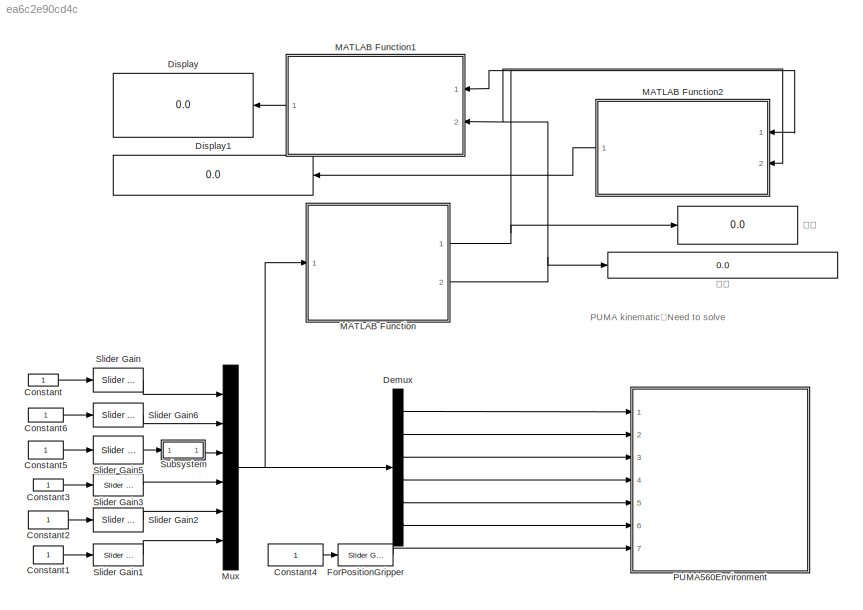
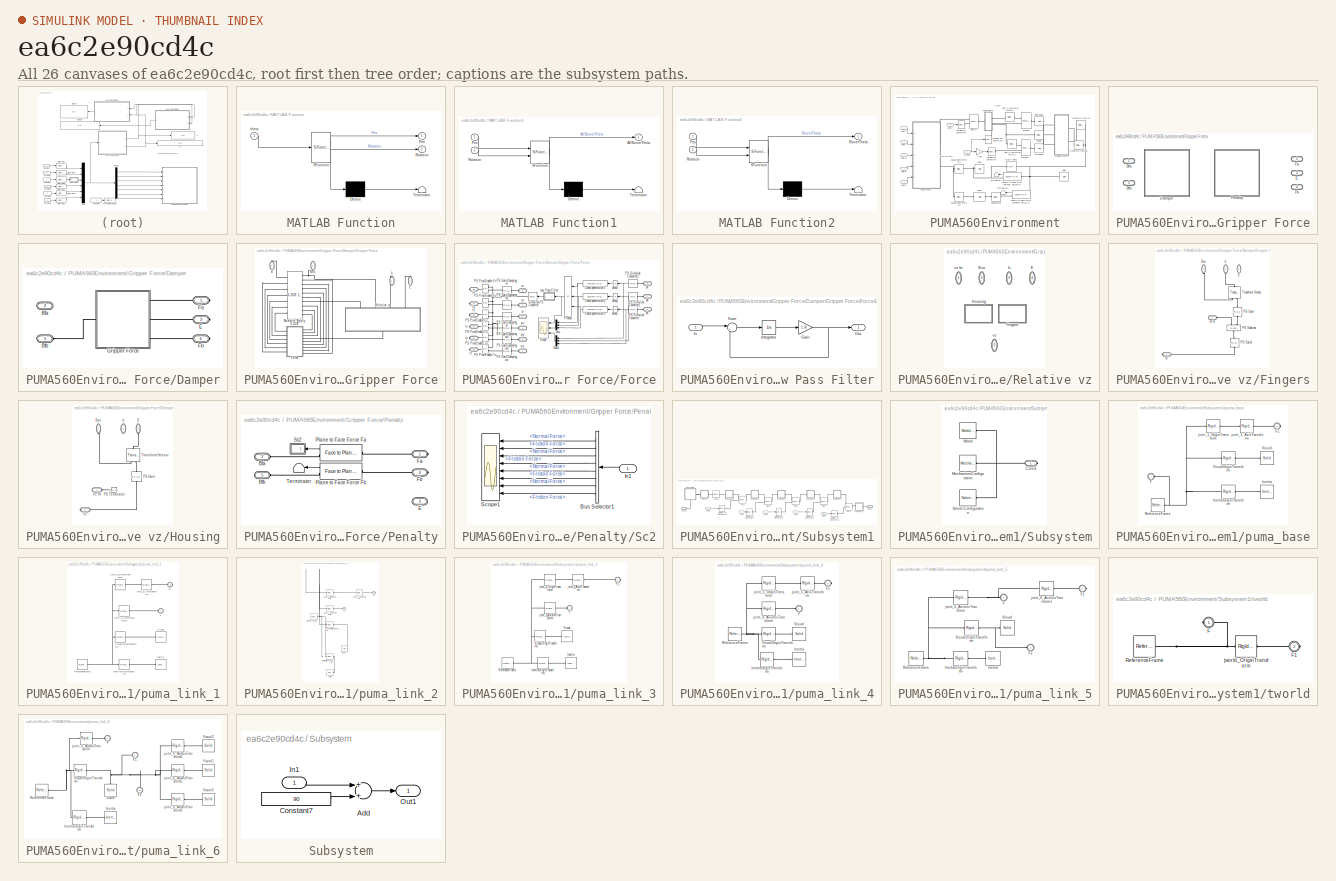
[diagram: thumbnail index - all 26 canvases of the model, root first then tree order]
MODEL slx_ea6c2e90cd4c
KIND model
CONFIG AbsTol = auto
CONFIG EnableMultiTasking = off
CONFIG FixedStep = 0.001
CONFIG InitFcn = %% Floor\nYBT_Par.Floor.r = 54.5e-2; % m\nYBT_Par.Floor.d = 1e-2;    % m\n\n%% Cube and Fixed Payload \n% Cube that moves on belt\nYBT_Par.Cube.d = 3e-2;                         % m\nYBT_Par.Cube.Con.rSph = YBT_Par.Cube.d*5e-2;   % m\nYBT_Par.Cube.init_z = 1e-1; % m Lower surface above floor\nYBT_Par.Cube.init_y = 40e-2+20e-2;             % m CG to World\nYBT_Par.Cube.mark.base = YBT_Par.Cube.d*0.4;   % m\nY...<+321ch>
CONFIG MaxStep = 0.01
CONFIG MinStep = auto
CONFIG PreLoadFcn = %puma560=importrobot('puma560.urdf');\n\n\n
CONFIG RelTol = 1e-3
CONFIG SampleTimeConstraint = Unconstrained
CONFIG Solver = ode3
CONFIG SolverName = ode3
CONFIG StartTime = 0.0
CONFIG StopTime = inf
WORKSPACE source: MAT-file member
WORKSPACE color: struct (value not decoded)
BLOCK [Constant] Constant
BLOCK [Constant] Constant1
BLOCK [Constant] Constant2
BLOCK [Constant] Constant3
BLOCK [Constant] Constant4
BLOCK [Constant] Constant5
BLOCK [Constant] Constant6
BLOCK [Demux] Demux
  DisplayOption = bar
  Outputs = 6
  Ports = [1, 6]
BLOCK [Display] Display
  Commented = on
  Decimation = 1
  Ports = [1]
BLOCK [Display] Display1
  Commented = on
  Decimation = 1
  Ports = [1]
BLOCK [Reference] ForPositionGripper  REF=simulink/Math
Operations/Slider
Gain
  Ports = [1, 1]
  SourceBlock = simulink/Math\nOperations/Slider\nGain
  SourceProductBaseCode = SL
  SourceProductName = Simulink
  SourceType = Slider Gain
BLOCK [SubSystem] MATLAB Function
  Commented = on
  ErrorFcn = Stateflow.Translate.translate
  PermitHierarchicalResolution = ExplicitOnly
  Ports = [1, 2]
  RequestExecContextInheritance = off
  SFBlockType = MATLAB Function
  TreatAsAtomicUnit = on
BLOCK [Demux] MATLAB Function/ Demux 
  Outputs = 1
  Ports = [1, 1]
BLOCK [S-Function] MATLAB Function/ SFunction 
  EnableBusSupport = on
  FunctionName = sf_sfun
  PortCounts = [1 3]
  Ports = [1, 3]
  SFcnIsStateOwnerBlock = off
  SFunctionDeploymentMode = off
  Tag = Stateflow S-Function TestPuma560 2
BLOCK [Terminator] MATLAB Function/ Terminator 
BLOCK [Outport] MATLAB Function/Pos
  IconDisplay = Port number
BLOCK [Outport] MATLAB Function/Rotation
  IconDisplay = Port number
  Port = 2
BLOCK [Inport] MATLAB Function/theta
  IconDisplay = Port number
BLOCK [SubSystem] MATLAB Function1
  Commented = on
  ErrorFcn = Stateflow.Translate.translate
  PermitHierarchicalResolution = ExplicitOnly
  Ports = [2, 1]
  RequestExecContextInheritance = off
  SFBlockType = MATLAB Function
  TreatAsAtomicUnit = on
BLOCK [Demux] MATLAB Function1/ Demux 
  Outputs = 1
  Ports = [1, 1]
BLOCK [S-Function] MATLAB Function1/ SFunction 
  EnableBusSupport = on
  FunctionName = sf_sfun
  PortCounts = [2 2]
  Ports = [2, 2]
  SFcnIsStateOwnerBlock = off
  SFunctionDeploymentMode = off
  Tag = Stateflow S-Function TestPuma560 1
BLOCK [Terminator] MATLAB Function1/ Terminator 
BLOCK [Outport] MATLAB Function1/AllSloverTheta
  IconDisplay = Port number
BLOCK [Inport] MATLAB Function1/Pos
  IconDisplay = Port number
BLOCK [Inport] MATLAB Function1/Rotation
  IconDisplay = Port number
  Port = 2
BLOCK [SubSystem] MATLAB Function2
  Commented = on
  ErrorFcn = Stateflow.Translate.translate
  PermitHierarchicalResolution = ExplicitOnly
  Ports = [2, 1]
  RequestExecContextInheritance = off
  SFBlockType = MATLAB Function
  TreatAsAtomicUnit = on
BLOCK [Demux] MATLAB Function2/ Demux 
  Outputs = 1
  Ports = [1, 1]
BLOCK [S-Function] MATLAB Function2/ SFunction 
  EnableBusSupport = on
  FunctionName = sf_sfun
  PortCounts = [2 2]
  Ports = [2, 2]
  SFcnIsStateOwnerBlock = off
  SFunctionDeploymentMode = off
  Tag = Stateflow S-Function TestPuma560 3
BLOCK [Terminator] MATLAB Function2/ Terminator 
BLOCK [Inport] MATLAB Function2/Pos
  IconDisplay = Port number
BLOCK [Inport] MATLAB Function2/Rotation
  IconDisplay = Port number
  Port = 2
BLOCK [Outport] MATLAB Function2/SloverTheta
  IconDisplay = Port number
BLOCK [Mux] Mux
  DisplayOption = bar
  Inputs = 6
  Ports = [6, 1]
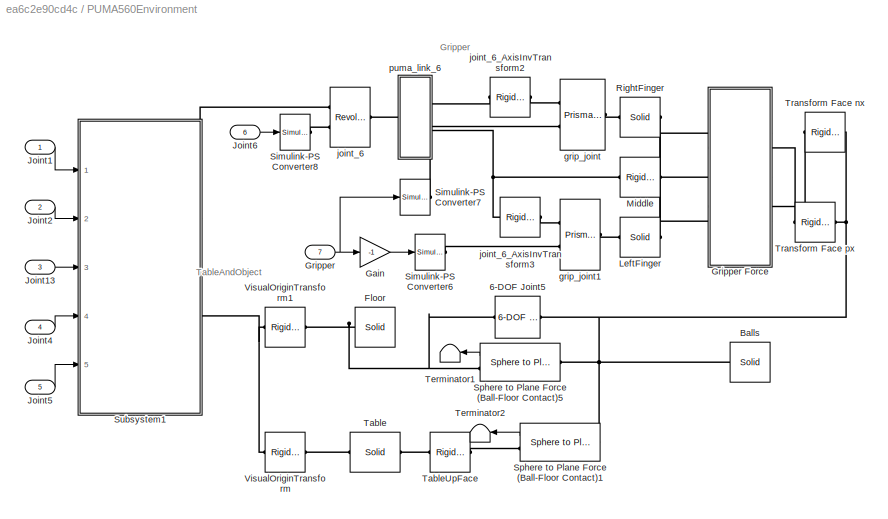
BLOCK [SubSystem] PUMA560Environment
  Ports = [7]
  RequestExecContextInheritance = off
BLOCK [Reference] PUMA560Environment/6-DOF Joint5  REF=sm_lib/Joints/6-DOF Joint
  Ports = [0, 0, 0, 0, 0, 1, 1]
  SourceBlock = sm_lib/Joints/6-DOF Joint
  SourceProductBaseCode = MS
  SourceProductName = Simscape Multibody
  SourceType = 6-DOF Joint
BLOCK [Reference] PUMA560Environment/Balls  REF=sm_lib/Body Elements/Solid
  Ports = [0, 0, 0, 0, 0, 0, 1]
  SourceBlock = sm_lib/Body Elements/Solid
  SourceProductBaseCode = MS
  SourceProductName = Simscape Multibody
  SourceType = Solid
BLOCK [Reference] PUMA560Environment/Floor  REF=sm_lib/Body Elements/Solid
  Ports = [0, 0, 0, 0, 0, 0, 1]
  SourceBlock = sm_lib/Body Elements/Solid
  SourceProductBaseCode = MS
  SourceProductName = Simscape Multibody
  SourceType = Solid
BLOCK [Gain] PUMA560Environment/Gain
  Gain = -1
  OutDataTypeStr = Inherit: Inherit via internal rule
  ParamDataTypeStr = Inherit: Inherit via internal rule
  SaturateOnIntegerOverflow = off
BLOCK [Inport] PUMA560Environment/Gripper 
  IconDisplay = Port number
  Port = 7
BLOCK [SubSystem] PUMA560Environment/Gripper Force
  AttributesFormatString = %<ActiveVariant>
  OverrideUsingVariant = Damper
  Ports = [0, 0, 0, 0, 0, 2, 3]
  RequestExecContextInheritance = off
  Variant = on
BLOCK [PMIOPort] PUMA560Environment/Gripper Force/Bfa
  Port = 2
  Side = Left
BLOCK [PMIOPort] PUMA560Environment/Gripper Force/Bfb
  Port = 5
  Side = Left
BLOCK [SubSystem] PUMA560Environment/Gripper Force/Damper
  Ports = [0, 0, 0, 0, 0, 2, 3]
  RequestExecContextInheritance = off
  VariantControl = Damper
BLOCK [PMIOPort] PUMA560Environment/Gripper Force/Damper/Bfa
  Port = 2
  Side = Left
BLOCK [PMIOPort] PUMA560Environment/Gripper Force/Damper/Bfb
  Port = 5
  Side = Left
BLOCK [PMIOPort] PUMA560Environment/Gripper Force/Damper/E
  Port = 3
  Side = Right
BLOCK [PMIOPort] PUMA560Environment/Gripper Force/Damper/Fa
  Side = Right
BLOCK [PMIOPort] PUMA560Environment/Gripper Force/Damper/Fb
  Port = 4
  Side = Right
BLOCK [SubSystem] PUMA560Environment/Gripper Force/Damper/Gripper Force
  Ports = [0, 0, 0, 0, 0, 1, 3]
  RequestExecContextInheritance = off
  Tag = PublishSubsystem
BLOCK [PMIOPort] PUMA560Environment/Gripper Force/Damper/Gripper Force/Box
  Port = 4
  Side = Left
BLOCK [PMIOPort] PUMA560Environment/Gripper Force/Damper/Gripper Force/E
  Port = 2
  Side = Right
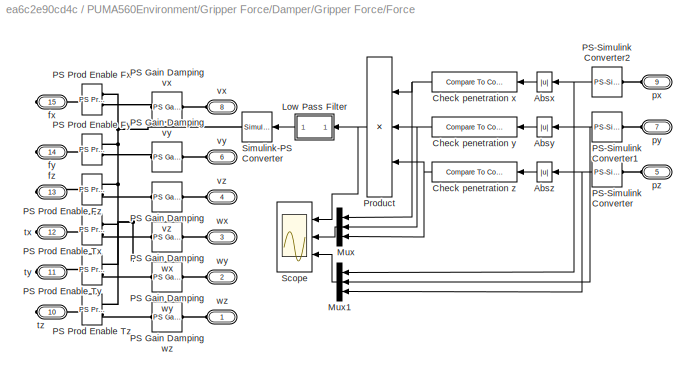
BLOCK [SubSystem] PUMA560Environment/Gripper Force/Damper/Gripper Force/Force
  Ports = [0, 0, 0, 0, 0, 9, 6]
  RequestExecContextInheritance = off
BLOCK [Abs] PUMA560Environment/Gripper Force/Damper/Gripper Force/Force/Absx
  SaturateOnIntegerOverflow = off
  ZeroCross = off
BLOCK [Abs] PUMA560Environment/Gripper Force/Damper/Gripper Force/Force/Absy
  SaturateOnIntegerOverflow = off
  ZeroCross = off
BLOCK [Abs] PUMA560Environment/Gripper Force/Damper/Gripper Force/Force/Absz
  SaturateOnIntegerOverflow = off
  ZeroCross = off
BLOCK [Reference] PUMA560Environment/Gripper Force/Damper/Gripper Force/Force/Check penetration x  REF=simulink/Logic and Bit
Operations/Compare
To Constant
  Ports = [1, 1]
  SourceBlock = simulink/Logic and Bit\nOperations/Compare\nTo Constant
  SourceProductBaseCode = SL
  SourceProductName = Simulink
  SourceType = Compare To Constant
BLOCK [Reference] PUMA560Environment/Gripper Force/Damper/Gripper Force/Force/Check penetration y  REF=simulink/Logic and Bit
Operations/Compare
To Constant
  Ports = [1, 1]
  SourceBlock = simulink/Logic and Bit\nOperations/Compare\nTo Constant
  SourceProductBaseCode = SL
  SourceProductName = Simulink
  SourceType = Compare To Constant
BLOCK [Reference] PUMA560Environment/Gripper Force/Damper/Gripper Force/Force/Check penetration z  REF=simulink/Logic and Bit
Operations/Compare
To Constant
  Ports = [1, 1]
  SourceBlock = simulink/Logic and Bit\nOperations/Compare\nTo Constant
  SourceProductBaseCode = SL
  SourceProductName = Simulink
  SourceType = Compare To Constant
BLOCK [SubSystem] PUMA560Environment/Gripper Force/Damper/Gripper Force/Force/Low Pass Filter
  Ports = [1, 1]
  RequestExecContextInheritance = off
BLOCK [Gain] PUMA560Environment/Gripper Force/Damper/Gripper Force/Force/Low Pass Filter/Gain
  Gain = 1./b
  OutDataTypeStr = Inherit: Inherit via internal rule
  ParamDataTypeStr = Inherit: Inherit via internal rule
  SaturateOnIntegerOverflow = off
BLOCK [Inport] PUMA560Environment/Gripper Force/Damper/Gripper Force/Force/Low Pass Filter/In
  IconDisplay = Port number
BLOCK [Integrator] PUMA560Environment/Gripper Force/Damper/Gripper Force/Force/Low Pass Filter/Integrator
  InitialCondition = x_initial.*b
  Ports = [1, 1]
BLOCK [Outport] PUMA560Environment/Gripper Force/Damper/Gripper Force/Force/Low Pass Filter/Out
  IconDisplay = Port number
BLOCK [Sum] PUMA560Environment/Gripper Force/Damper/Gripper Force/Force/Low Pass Filter/Sum
  IconShape = round
  Inputs = |+-
  Ports = [2, 1]
BLOCK [Mux] PUMA560Environment/Gripper Force/Damper/Gripper Force/Force/Mux
  DisplayOption = bar
  Inputs = 3
  Ports = [3, 1]
BLOCK [Mux] PUMA560Environment/Gripper Force/Damper/Gripper Force/Force/Mux1
  DisplayOption = bar
  Inputs = 3
  Ports = [3, 1]
BLOCK [Reference] PUMA560Environment/Gripper Force/Damper/Gripper Force/Force/PS Gain Damping vx  REF=fl_lib/Physical Signals/Functions/PS Gain
  Ports = [0, 0, 0, 0, 0, 1, 1]
  SourceBlock = fl_lib/Physical Signals/Functions/PS Gain
  SourceProductBaseCode = SS
  SourceProductName = Simscape
  SourceType = PS Gain
BLOCK [Reference] PUMA560Environment/Gripper Force/Damper/Gripper Force/Force/PS Gain Damping vy  REF=fl_lib/Physical Signals/Functions/PS Gain
  Ports = [0, 0, 0, 0, 0, 1, 1]
  SourceBlock = fl_lib/Physical Signals/Functions/PS Gain
  SourceProductBaseCode = SS
  SourceProductName = Simscape
  SourceType = PS Gain
BLOCK [Reference] PUMA560Environment/Gripper Force/Damper/Gripper Force/Force/PS Gain Damping vz  REF=fl_lib/Physical Signals/Functions/PS Gain
  Ports = [0, 0, 0, 0, 0, 1, 1]
  SourceBlock = fl_lib/Physical Signals/Functions/PS Gain
  SourceProductBaseCode = SS
  SourceProductName = Simscape
  SourceType = PS Gain
BLOCK [Reference] PUMA560Environment/Gripper Force/Damper/Gripper Force/Force/PS Gain Damping wx  REF=fl_lib/Physical Signals/Functions/PS Gain
  Ports = [0, 0, 0, 0, 0, 1, 1]
  SourceBlock = fl_lib/Physical Signals/Functions/PS Gain
  SourceProductBaseCode = SS
  SourceProductName = Simscape
  SourceType = PS Gain
BLOCK [Reference] PUMA560Environment/Gripper Force/Damper/Gripper Force/Force/PS Gain Damping wy  REF=fl_lib/Physical Signals/Functions/PS Gain
  Ports = [0, 0, 0, 0, 0, 1, 1]
  SourceBlock = fl_lib/Physical Signals/Functions/PS Gain
  SourceProductBaseCode = SS
  SourceProductName = Simscape
  SourceType = PS Gain
BLOCK [Reference] PUMA560Environment/Gripper Force/Damper/Gripper Force/Force/PS Gain Damping wz  REF=fl_lib/Physical Signals/Functions/PS Gain
  Ports = [0, 0, 0, 0, 0, 1, 1]
  SourceBlock = fl_lib/Physical Signals/Functions/PS Gain
  SourceProductBaseCode = SS
  SourceProductName = Simscape
  SourceType = PS Gain
BLOCK [Reference] PUMA560Environment/Gripper Force/Damper/Gripper Force/Force/PS Prod Enable Fx  REF=fl_lib/Physical Signals/Functions/PS Product
  Ports = [0, 0, 0, 0, 0, 2, 1]
  SourceBlock = fl_lib/Physical Signals/Functions/PS Product
  SourceProductBaseCode = SS
  SourceProductName = Simscape
  SourceType = PS Product
BLOCK [Reference] PUMA560Environment/Gripper Force/Damper/Gripper Force/Force/PS Prod Enable Fy  REF=fl_lib/Physical Signals/Functions/PS Product
  Ports = [0, 0, 0, 0, 0, 2, 1]
  SourceBlock = fl_lib/Physical Signals/Functions/PS Product
  SourceProductBaseCode = SS
  SourceProductName = Simscape
  SourceType = PS Product
BLOCK [Reference] PUMA560Environment/Gripper Force/Damper/Gripper Force/Force/PS Prod Enable Fz  REF=fl_lib/Physical Signals/Functions/PS Product
  Ports = [0, 0, 0, 0, 0, 2, 1]
  SourceBlock = fl_lib/Physical Signals/Functions/PS Product
  SourceProductBaseCode = SS
  SourceProductName = Simscape
  SourceType = PS Product
BLOCK [Reference] PUMA560Environment/Gripper Force/Damper/Gripper Force/Force/PS Prod Enable Tx  REF=fl_lib/Physical Signals/Functions/PS Product
  Ports = [0, 0, 0, 0, 0, 2, 1]
  SourceBlock = fl_lib/Physical Signals/Functions/PS Product
  SourceProductBaseCode = SS
  SourceProductName = Simscape
  SourceType = PS Product
BLOCK [Reference] PUMA560Environment/Gripper Force/Damper/Gripper Force/Force/PS Prod Enable Ty  REF=fl_lib/Physical Signals/Functions/PS Product
  Ports = [0, 0, 0, 0, 0, 2, 1]
  SourceBlock = fl_lib/Physical Signals/Functions/PS Product
  SourceProductBaseCode = SS
  SourceProductName = Simscape
  SourceType = PS Product
BLOCK [Reference] PUMA560Environment/Gripper Force/Damper/Gripper Force/Force/PS Prod Enable Tz  REF=fl_lib/Physical Signals/Functions/PS Product
  Ports = [0, 0, 0, 0, 0, 2, 1]
  SourceBlock = fl_lib/Physical Signals/Functions/PS Product
  SourceProductBaseCode = SS
  SourceProductName = Simscape
  SourceType = PS Product
BLOCK [Reference] PUMA560Environment/Gripper Force/Damper/Gripper Force/Force/PS-Simulink Converter  REF=nesl_utility/PS-Simulink
Converter
  Ports = [0, 1, 0, 0, 0, 1]
  SourceBlock = nesl_utility/PS-Simulink\nConverter
  SourceProductBaseCode = SS
  SourceProductName = Simscape
  SourceType = PS-Simulink\nConverter
BLOCK [Reference] PUMA560Environment/Gripper Force/Damper/Gripper Force/Force/PS-Simulink Converter1  REF=nesl_utility/PS-Simulink
Converter
  Ports = [0, 1, 0, 0, 0, 1]
  SourceBlock = nesl_utility/PS-Simulink\nConverter
  SourceProductBaseCode = SS
  SourceProductName = Simscape
  SourceType = PS-Simulink\nConverter
BLOCK [Reference] PUMA560Environment/Gripper Force/Damper/Gripper Force/Force/PS-Simulink Converter2  REF=nesl_utility/PS-Simulink
Converter
  Ports = [0, 1, 0, 0, 0, 1]
  SourceBlock = nesl_utility/PS-Simulink\nConverter
  SourceProductBaseCode = SS
  SourceProductName = Simscape
  SourceType = PS-Simulink\nConverter
BLOCK [Product] PUMA560Environment/Gripper Force/Damper/Gripper Force/Force/Product
  InputSameDT = off
  Inputs = 3
  OutDataTypeStr = double
  Ports = [3, 1]
  RndMeth = Floor
  SaturateOnIntegerOverflow = off
BLOCK [Scope] PUMA560Environment/Gripper Force/Damper/Gripper Force/Force/Scope
  Floating = off
  NumInputPorts = 3
  Ports = [3]
  ScopeSpecificationString = Simulink.scopes.TimeScopeBlockCfg('CurrentConfiguration', extmgr.ConfigurationSet(extmgr.Configuration('Core','General UI',true),extmgr.Configuration('Core','Source UI',true),extmgr.Configuration('Sources','WiredSimulink',true,'DataLoggingVariableName','ScopeData1'),extmgr.Configuration('Visuals','Time Domain',true,'SerializedDisplays',{struct('MinYLimReal','-1.00000','MaxYLimReal','1.00000','YLab...<+2860ch>
BLOCK [Reference] PUMA560Environment/Gripper Force/Damper/Gripper Force/Force/Simulink-PS Converter  REF=nesl_utility/Simulink-PS
Converter
  Ports = [1, 0, 0, 0, 0, 0, 1]
  SourceBlock = nesl_utility/Simulink-PS\nConverter
  SourceProductBaseCode = SS
  SourceProductName = Simscape
  SourceType = Simulink-PS\nConverter
BLOCK [PMIOPort] PUMA560Environment/Gripper Force/Damper/Gripper Force/Force/fx
  Port = 15
  Side = Right
BLOCK [PMIOPort] PUMA560Environment/Gripper Force/Damper/Gripper Force/Force/fy
  Port = 14
  Side = Right
BLOCK [PMIOPort] PUMA560Environment/Gripper Force/Damper/Gripper Force/Force/fz
  Port = 13
  Side = Right
BLOCK [PMIOPort] PUMA560Environment/Gripper Force/Damper/Gripper Force/Force/px
  Port = 9
  Side = Left
BLOCK [PMIOPort] PUMA560Environment/Gripper Force/Damper/Gripper Force/Force/py
  Port = 7
  Side = Left
BLOCK [PMIOPort] PUMA560Environment/Gripper Force/Damper/Gripper Force/Force/pz
  Port = 5
  Side = Left
BLOCK [PMIOPort] PUMA560Environment/Gripper Force/Damper/Gripper Force/Force/tx
  Port = 12
  Side = Right
BLOCK [PMIOPort] PUMA560Environment/Gripper Force/Damper/Gripper Force/Force/ty
  Port = 11
  Side = Right
BLOCK [PMIOPort] PUMA560Environment/Gripper Force/Damper/Gripper Force/Force/tz
  Port = 10
  Side = Right
BLOCK [PMIOPort] PUMA560Environment/Gripper Force/Damper/Gripper Force/Force/vx
  Port = 8
  Side = Left
BLOCK [PMIOPort] PUMA560Environment/Gripper Force/Damper/Gripper Force/Force/vy
  Port = 6
  Side = Left
BLOCK [PMIOPort] PUMA560Environment/Gripper Force/Damper/Gripper Force/Force/vz
  Port = 4
  Side = Left
BLOCK [PMIOPort] PUMA560Environment/Gripper Force/Damper/Gripper Force/Force/wx
  Port = 3
  Side = Left
BLOCK [PMIOPort] PUMA560Environment/Gripper Force/Damper/Gripper Force/Force/wy
  Port = 2
  Side = Left
BLOCK [PMIOPort] PUMA560Environment/Gripper Force/Damper/Gripper Force/Force/wz
  Side = Left
BLOCK [Reference] PUMA560Environment/Gripper Force/Damper/Gripper Force/Measure Apply 6-DOF  REF=sm_lib/Joints/6-DOF Joint
  Ports = [0, 0, 0, 0, 0, 7, 10]
  SourceBlock = sm_lib/Joints/6-DOF Joint
  SourceProductBaseCode = MS
  SourceProductName = Simscape Multibody
  SourceType = 6-DOF Joint
BLOCK [SubSystem] PUMA560Environment/Gripper Force/Damper/Gripper Force/Relative vz
  AttributesFormatString = %<ActiveVariant>
  OverrideUsingVariant = Housing
  Ports = [0, 0, 0, 0, 0, 4, 1]
  RequestExecContextInheritance = off
  Variant = on
BLOCK [PMIOPort] PUMA560Environment/Gripper Force/Damper/Gripper Force/Relative vz/Box
  Port = 2
  Side = Left
BLOCK [PMIOPort] PUMA560Environment/Gripper Force/Damper/Gripper Force/Relative vz/E
  Port = 4
  Side = Left
BLOCK [SubSystem] PUMA560Environment/Gripper Force/Damper/Gripper Force/Relative vz/Fingers
  Ports = [0, 0, 0, 0, 0, 4, 1]
  RequestExecContextInheritance = off
  VariantControl = Fingers
BLOCK [PMIOPort] PUMA560Environment/Gripper Force/Damper/Gripper Force/Relative vz/Fingers/Box
  Port = 2
  Side = Left
BLOCK [PMIOPort] PUMA560Environment/Gripper Force/Damper/Gripper Force/Relative vz/Fingers/E
  Port = 4
  Side = Left
BLOCK [Reference] PUMA560Environment/Gripper Force/Damper/Gripper Force/Relative vz/Fingers/PS Gain  REF=fl_lib/Physical Signals/Functions/PS Gain
  Ports = [0, 0, 0, 0, 0, 1, 1]
  SourceBlock = fl_lib/Physical Signals/Functions/PS Gain
  SourceProductBaseCode = SS
  SourceProductName = Simscape
  SourceType = PS Gain
BLOCK [Reference] PUMA560Environment/Gripper Force/Damper/Gripper Force/Relative vz/Fingers/PS Gain1  REF=fl_lib/Physical Signals/Functions/PS Gain
  Ports = [0, 0, 0, 0, 0, 1, 1]
  SourceBlock = fl_lib/Physical Signals/Functions/PS Gain
  SourceProductBaseCode = SS
  SourceProductName = Simscape
  SourceType = PS Gain
BLOCK [Reference] PUMA560Environment/Gripper Force/Damper/Gripper Force/Relative vz/Fingers/PS Subtract  REF=fl_lib/Physical Signals/Functions/PS Subtract
  Ports = [0, 0, 0, 0, 0, 2, 1]
  SourceBlock = fl_lib/Physical Signals/Functions/PS Subtract
  SourceProductBaseCode = SS
  SourceProductName = Simscape
  SourceType = PS Subtract
BLOCK [Reference] PUMA560Environment/Gripper Force/Damper/Gripper Force/Relative vz/Fingers/Transform Sensor  REF=sm_lib/Frames and
Transforms/Transform
Sensor
  Ports = [0, 0, 0, 0, 0, 1, 2]
  SourceBlock = sm_lib/Frames and\nTransforms/Transform\nSensor
  SourceProductBaseCode = MS
  SourceProductName = Simscape Multibody
  SourceType = Transform\nSensor
BLOCK [PMIOPort] PUMA560Environment/Gripper Force/Damper/Gripper Force/Relative vz/Fingers/b
  Port = 3
  Side = Left
BLOCK [PMIOPort] PUMA560Environment/Gripper Force/Damper/Gripper Force/Relative vz/Fingers/vz
  Port = 5
  Side = Right
BLOCK [PMIOPort] PUMA560Environment/Gripper Force/Damper/Gripper Force/Relative vz/Fingers/vz fa
  Side = Left
BLOCK [SubSystem] PUMA560Environment/Gripper Force/Damper/Gripper Force/Relative vz/Housing
  Ports = [0, 0, 0, 0, 0, 4, 1]
  RequestExecContextInheritance = off
  VariantControl = Housing
BLOCK [PMIOPort] PUMA560Environment/Gripper Force/Damper/Gripper Force/Relative vz/Housing/Box
  Port = 2
  Side = Left
BLOCK [PMIOPort] PUMA560Environment/Gripper Force/Damper/Gripper Force/Relative vz/Housing/E
  Port = 4
  Side = Left
BLOCK [Reference] PUMA560Environment/Gripper Force/Damper/Gripper Force/Relative vz/Housing/PS Gain  REF=fl_lib/Physical Signals/Functions/PS Gain
  Ports = [0, 0, 0, 0, 0, 1, 1]
  SourceBlock = fl_lib/Physical Signals/Functions/PS Gain
  SourceProductBaseCode = SS
  SourceProductName = Simscape
  SourceType = PS Gain
BLOCK [Reference] PUMA560Environment/Gripper Force/Damper/Gripper Force/Relative vz/Housing/PS Terminator  REF=fl_lib/Physical Signals/Sinks/PS Terminator
  Ports = [0, 0, 0, 0, 0, 1]
  SourceBlock = fl_lib/Physical Signals/Sinks/PS Terminator
  SourceProductBaseCode = SS
  SourceProductName = Simscape
  SourceType = PS Terminator
BLOCK [Reference] PUMA560Environment/Gripper Force/Damper/Gripper Force/Relative vz/Housing/Transform Sensor  REF=sm_lib/Frames and
Transforms/Transform
Sensor
  Ports = [0, 0, 0, 0, 0, 1, 2]
  SourceBlock = sm_lib/Frames and\nTransforms/Transform\nSensor
  SourceProductBaseCode = MS
  SourceProductName = Simscape Multibody
  SourceType = Transform\nSensor
BLOCK [PMIOPort] PUMA560Environment/Gripper Force/Damper/Gripper Force/Relative vz/Housing/b
  Port = 3
  Side = Left
BLOCK [PMIOPort] PUMA560Environment/Gripper Force/Damper/Gripper Force/Relative vz/Housing/vz
  Port = 5
  Side = Right
BLOCK [PMIOPort] PUMA560Environment/Gripper Force/Damper/Gripper Force/Relative vz/Housing/vz fa
  Side = Left
BLOCK [PMIOPort] PUMA560Environment/Gripper Force/Damper/Gripper Force/Relative vz/b
  Port = 3
  Side = Left
BLOCK [PMIOPort] PUMA560Environment/Gripper Force/Damper/Gripper Force/Relative vz/vz
  Port = 5
  Side = Right
BLOCK [PMIOPort] PUMA560Environment/Gripper Force/Damper/Gripper Force/Relative vz/vz fa
  Side = Left
BLOCK [PMIOPort] PUMA560Environment/Gripper Force/Damper/Gripper Force/a
  Port = 3
  Side = Right
BLOCK [PMIOPort] PUMA560Environment/Gripper Force/Damper/Gripper Force/b
  Side = Right
BLOCK [PMIOPort] PUMA560Environment/Gripper Force/E
  Port = 3
  Side = Right
BLOCK [PMIOPort] PUMA560Environment/Gripper Force/Fa
  Side = Right
BLOCK [PMIOPort] PUMA560Environment/Gripper Force/Fb
  Port = 4
  Side = Right
BLOCK [SubSystem] PUMA560Environment/Gripper Force/Penalty
  Ports = [0, 0, 0, 0, 0, 2, 3]
  RequestExecContextInheritance = off
  VariantControl = Penalty
BLOCK [PMIOPort] PUMA560Environment/Gripper Force/Penalty/Bfa
  Port = 2
  Side = Left
BLOCK [PMIOPort] PUMA560Environment/Gripper Force/Penalty/Bfb
  Port = 5
  Side = Left
BLOCK [PMIOPort] PUMA560Environment/Gripper Force/Penalty/E
  Port = 3
  Side = Right
BLOCK [PMIOPort] PUMA560Environment/Gripper Force/Penalty/Fa
  Side = Right
BLOCK [PMIOPort] PUMA560Environment/Gripper Force/Penalty/Fb
  Port = 4
  Side = Right
BLOCK [Reference] PUMA560Environment/Gripper Force/Penalty/Plane to Face Force Fa  REF=Contact_Forces_Lib/3D/Composite
Forces/Face to Plane Force
  Commented = on
  Ports = [0, 1, 0, 0, 0, 1, 1]
  SourceBlock = Contact_Forces_Lib/3D/Composite\nForces/Face to Plane Force
  SourceProductName = Simscape Multibody Contact Forces Library
  SourceType = Face to Plane Force
BLOCK [Reference] PUMA560Environment/Gripper Force/Penalty/Plane to Face Force Fb  REF=Contact_Forces_Lib/3D/Composite
Forces/Face to Plane Force
  Commented = on
  Ports = [0, 1, 0, 0, 0, 1, 1]
  SourceBlock = Contact_Forces_Lib/3D/Composite\nForces/Face to Plane Force
  SourceProductName = Simscape Multibody Contact Forces Library
  SourceType = Face to Plane Force
BLOCK [SubSystem] PUMA560Environment/Gripper Force/Penalty/Sc2
  Commented = on
  Ports = [1]
  RequestExecContextInheritance = off
BLOCK [BusSelector] PUMA560Environment/Gripper Force/Penalty/Sc2/Bus Selector1
  OutputAsBus = off
  OutputSignals = fz1.Normal Force,fz1.Friction Force,fz2.Normal Force,fz2.Friction Force,fz3.Normal Force,fz3.Friction Force,fz4.Normal Force,fz4.Friction Force
  Ports = [1, 8]
BLOCK [Inport] PUMA560Environment/Gripper Force/Penalty/Sc2/In1
  IconDisplay = Port number
BLOCK [Scope] PUMA560Environment/Gripper Force/Penalty/Sc2/Scope1
  Floating = off
  NumInputPorts = 8
  Ports = [8]
  ScopeSpecificationString = Simulink.scopes.TimeScopeBlockCfg('CurrentConfiguration', extmgr.ConfigurationSet(extmgr.Configuration('Core','General UI',true),extmgr.Configuration('Core','Source UI',true),extmgr.Configuration('Sources','WiredSimulink',true,'DataLoggingVariableName','ScopeData2'),extmgr.Configuration('Visuals','Time Domain',true,'SerializedDisplays',{struct('MinYLimReal','-312.6734','MaxYLimReal','2814.06064','...<+6529ch>
BLOCK [Terminator] PUMA560Environment/Gripper Force/Penalty/Terminator
  Commented = on
BLOCK [Inport] PUMA560Environment/Joint1
  IconDisplay = Port number
BLOCK [Inport] PUMA560Environment/Joint13
  IconDisplay = Port number
  Port = 3
BLOCK [Inport] PUMA560Environment/Joint2
  IconDisplay = Port number
  Port = 2
BLOCK [Inport] PUMA560Environment/Joint4
  IconDisplay = Port number
  Port = 4
BLOCK [Inport] PUMA560Environment/Joint5
  IconDisplay = Port number
  Port = 5
BLOCK [Inport] PUMA560Environment/Joint6
  IconDisplay = Port number
  Port = 6
BLOCK [Reference] PUMA560Environment/LeftFinger  REF=sm_lib/Body Elements/Solid
  Ports = [0, 0, 0, 0, 0, 1, 1]
  SourceBlock = sm_lib/Body Elements/Solid
  SourceProductBaseCode = MS
  SourceProductName = Simscape Multibody
  SourceType = Solid
BLOCK [Reference] PUMA560Environment/Middle  REF=sm_lib/Frames and
Transforms/Rigid
Transform
  Ports = [0, 0, 0, 0, 0, 1, 1]
  SourceBlock = sm_lib/Frames and\nTransforms/Rigid\nTransform
  SourceProductBaseCode = MS
  SourceType = Rigid\nTransform
BLOCK [Reference] PUMA560Environment/RightFinger  REF=sm_lib/Body Elements/Solid
  Ports = [0, 0, 0, 0, 0, 1, 1]
  SourceBlock = sm_lib/Body Elements/Solid
  SourceProductBaseCode = MS
  SourceProductName = Simscape Multibody
  SourceType = Solid
BLOCK [Reference] PUMA560Environment/Simulink-PS Converter6  REF=nesl_utility/Simulink-PS
Converter
  Ports = [1, 0, 0, 0, 0, 0, 1]
  SourceBlock = nesl_utility/Simulink-PS\nConverter
  SourceProductBaseCode = SS
  SourceProductName = Simscape
  SourceType = Simulink-PS\nConverter
BLOCK [Reference] PUMA560Environment/Simulink-PS Converter7  REF=nesl_utility/Simulink-PS
Converter
  Ports = [1, 0, 0, 0, 0, 0, 1]
  SourceBlock = nesl_utility/Simulink-PS\nConverter
  SourceProductBaseCode = SS
  SourceProductName = Simscape
  SourceType = Simulink-PS\nConverter
BLOCK [Reference] PUMA560Environment/Simulink-PS Converter8  REF=nesl_utility/Simulink-PS
Converter
  Ports = [1, 0, 0, 0, 0, 0, 1]
  SourceBlock = nesl_utility/Simulink-PS\nConverter
  SourceProductBaseCode = SS
  SourceProductName = Simscape
  SourceType = Simulink-PS\nConverter
BLOCK [Reference] PUMA560Environment/Sphere to Plane Force (Ball-Floor Contact)1  REF=Contact_Forces_Lib/3D/Sphere to Plane Force
  Ports = [0, 1, 0, 0, 0, 1, 1]
  SourceBlock = Contact_Forces_Lib/3D/Sphere to Plane Force
  SourceProductName = Simscape Multibody Contact Forces Library
  SourceType = Sphere to Plane Force
BLOCK [Reference] PUMA560Environment/Sphere to Plane Force (Ball-Floor Contact)5  REF=Contact_Forces_Lib/3D/Sphere to Plane Force
  Ports = [0, 1, 0, 0, 0, 1, 1]
  SourceBlock = Contact_Forces_Lib/3D/Sphere to Plane Force
  SourceProductName = Simscape Multibody Contact Forces Library
  SourceType = Sphere to Plane Force
BLOCK [SubSystem] PUMA560Environment/Subsystem1
  Ports = [5, 0, 0, 0, 0, 0, 2]
  RequestExecContextInheritance = off
BLOCK [PMIOPort] PUMA560Environment/Subsystem1/Conn1
  Side = Right
BLOCK [PMIOPort] PUMA560Environment/Subsystem1/Conn2
  Port = 2
  Side = Right
BLOCK [Inport] PUMA560Environment/Subsystem1/Joint1
  IconDisplay = Port number
BLOCK [Inport] PUMA560Environment/Subsystem1/Joint13
  IconDisplay = Port number
  Port = 3
BLOCK [Inport] PUMA560Environment/Subsystem1/Joint2
  IconDisplay = Port number
  Port = 2
BLOCK [Inport] PUMA560Environment/Subsystem1/Joint4
  IconDisplay = Port number
  Port = 4
BLOCK [Inport] PUMA560Environment/Subsystem1/Joint5
  IconDisplay = Port number
  Port = 5
BLOCK [Reference] PUMA560Environment/Subsystem1/Simulink-PS Converter1  REF=nesl_utility/Simulink-PS
Converter
  Ports = [1, 0, 0, 0, 0, 0, 1]
  SourceBlock = nesl_utility/Simulink-PS\nConverter
  SourceProductBaseCode = SS
  SourceProductName = Simscape
  SourceType = Simulink-PS\nConverter
BLOCK [Reference] PUMA560Environment/Subsystem1/Simulink-PS Converter2  REF=nesl_utility/Simulink-PS
Converter
  Ports = [1, 0, 0, 0, 0, 0, 1]
  SourceBlock = nesl_utility/Simulink-PS\nConverter
  SourceProductBaseCode = SS
  SourceProductName = Simscape
  SourceType = Simulink-PS\nConverter
BLOCK [Reference] PUMA560Environment/Subsystem1/Simulink-PS Converter3  REF=nesl_utility/Simulink-PS
Converter
  Ports = [1, 0, 0, 0, 0, 0, 1]
  SourceBlock = nesl_utility/Simulink-PS\nConverter
  SourceProductBaseCode = SS
  SourceProductName = Simscape
  SourceType = Simulink-PS\nConverter
BLOCK [Reference] PUMA560Environment/Subsystem1/Simulink-PS Converter4  REF=nesl_utility/Simulink-PS
Converter
  Ports = [1, 0, 0, 0, 0, 0, 1]
  SourceBlock = nesl_utility/Simulink-PS\nConverter
  SourceProductBaseCode = SS
  SourceProductName = Simscape
  SourceType = Simulink-PS\nConverter
BLOCK [Reference] PUMA560Environment/Subsystem1/Simulink-PS Converter5  REF=nesl_utility/Simulink-PS
Converter
  Ports = [1, 0, 0, 0, 0, 0, 1]
  SourceBlock = nesl_utility/Simulink-PS\nConverter
  SourceProductBaseCode = SS
  SourceProductName = Simscape
  SourceType = Simulink-PS\nConverter
BLOCK [SubSystem] PUMA560Environment/Subsystem1/Subsystem
  Ports = [0, 0, 0, 0, 0, 0, 1]
  RequestExecContextInheritance = off
BLOCK [PMIOPort] PUMA560Environment/Subsystem1/Subsystem/Conn1
  Side = Right
BLOCK [Reference] PUMA560Environment/Subsystem1/Subsystem/MechanismConfiguration  REF=sm_lib/Utilities/Mechanism
Configuration
  Ports = [0, 0, 0, 0, 0, 0, 1]
  SourceBlock = sm_lib/Utilities/Mechanism\nConfiguration
  SourceProductBaseCode = MS
  SourceProductName = Simscape Multibody
  SourceType = Mechanism\nConfiguration
BLOCK [Reference] PUMA560Environment/Subsystem1/Subsystem/Solver Configuration  REF=nesl_utility/Solver
Configuration
  Ports = [0, 0, 0, 0, 0, 0, 1]
  SourceBlock = nesl_utility/Solver\nConfiguration
  SourceProductBaseCode = SS
  SourceProductName = Simscape
  SourceType = Solver\nConfiguration
BLOCK [Reference] PUMA560Environment/Subsystem1/Subsystem/World  REF=sm_lib/Frames and
Transforms/World Frame
  Ports = [0, 0, 0, 0, 0, 0, 1]
  SourceBlock = sm_lib/Frames and\nTransforms/World Frame
  SourceProductBaseCode = MS
  SourceProductName = Simscape Multibody
  SourceType = World Frame
BLOCK [Reference] PUMA560Environment/Subsystem1/joint_1  REF=sm_lib/Joints/Revolute Joint
  Ports = [0, 0, 0, 0, 0, 2, 1]
  SourceBlock = sm_lib/Joints/Revolute Joint
  SourceProductBaseCode = MS
  SourceProductName = Simscape Multibody
  SourceType = Revolute Joint
BLOCK [Reference] PUMA560Environment/Subsystem1/joint_2  REF=sm_lib/Joints/Revolute Joint
  Ports = [0, 0, 0, 0, 0, 2, 1]
  SourceBlock = sm_lib/Joints/Revolute Joint
  SourceProductBaseCode = MS
  SourceProductName = Simscape Multibody
  SourceType = Revolute Joint
BLOCK [Reference] PUMA560Environment/Subsystem1/joint_3  REF=sm_lib/Joints/Revolute Joint
  Ports = [0, 0, 0, 0, 0, 2, 1]
  SourceBlock = sm_lib/Joints/Revolute Joint
  SourceProductBaseCode = MS
  SourceProductName = Simscape Multibody
  SourceType = Revolute Joint
BLOCK [Reference] PUMA560Environment/Subsystem1/joint_4  REF=sm_lib/Joints/Revolute Joint
  Ports = [0, 0, 0, 0, 0, 2, 1]
  SourceBlock = sm_lib/Joints/Revolute Joint
  SourceProductBaseCode = MS
  SourceProductName = Simscape Multibody
  SourceType = Revolute Joint
BLOCK [Reference] PUMA560Environment/Subsystem1/joint_5  REF=sm_lib/Joints/Revolute Joint
  Ports = [0, 0, 0, 0, 0, 2, 1]
  SourceBlock = sm_lib/Joints/Revolute Joint
  SourceProductBaseCode = MS
  SourceProductName = Simscape Multibody
  SourceType = Revolute Joint
BLOCK [Reference] PUMA560Environment/Subsystem1/jworld  REF=sm_lib/Joints/Weld Joint
  Ports = [0, 0, 0, 0, 0, 1, 1]
  SourceBlock = sm_lib/Joints/Weld Joint
  SourceProductBaseCode = MS
  SourceProductName = Simscape Multibody
  SourceType = Weld Joint
BLOCK [SubSystem] PUMA560Environment/Subsystem1/puma_base
  Ports = [0, 0, 0, 0, 0, 1, 1]
  RequestExecContextInheritance = off
BLOCK [PMIOPort] PUMA560Environment/Subsystem1/puma_base/F
  Side = Left
BLOCK [PMIOPort] PUMA560Environment/Subsystem1/puma_base/F1
  Port = 2
  Side = Right
BLOCK [Reference] PUMA560Environment/Subsystem1/puma_base/Inertia  REF=sm_lib/Body Elements/Inertia
  Ports = [0, 0, 0, 0, 0, 0, 1]
  SourceBlock = sm_lib/Body Elements/Inertia
  SourceProductBaseCode = MS
  SourceProductName = Simscape Multibody
  SourceType = Inertia
BLOCK [Reference] PUMA560Environment/Subsystem1/puma_base/InertiaOriginTransform  REF=sm_lib/Frames and
Transforms/Rigid
Transform
  Ports = [0, 0, 0, 0, 0, 1, 1]
  SourceBlock = sm_lib/Frames and\nTransforms/Rigid\nTransform
  SourceProductBaseCode = MS
  SourceProductName = Simscape Multibody
  SourceType = Rigid\nTransform
BLOCK [Reference] PUMA560Environment/Subsystem1/puma_base/ReferenceFrame  REF=sm_lib/Frames and
Transforms/Reference
Frame
  Ports = [0, 0, 0, 0, 0, 0, 1]
  SourceBlock = sm_lib/Frames and\nTransforms/Reference\nFrame
  SourceProductBaseCode = MS
  SourceProductName = Simscape Multibody
  SourceType = Reference\nFrame
BLOCK [Reference] PUMA560Environment/Subsystem1/puma_base/Visual  REF=sm_lib/Body Elements/Solid
  Ports = [0, 0, 0, 0, 0, 0, 1]
  SourceBlock = sm_lib/Body Elements/Solid
  SourceProductBaseCode = MS
  SourceProductName = Simscape Multibody
  SourceType = Solid
BLOCK [Reference] PUMA560Environment/Subsystem1/puma_base/VisualOriginTransform  REF=sm_lib/Frames and
Transforms/Rigid
Transform
  Ports = [0, 0, 0, 0, 0, 1, 1]
  SourceBlock = sm_lib/Frames and\nTransforms/Rigid\nTransform
  SourceProductBaseCode = MS
  SourceProductName = Simscape Multibody
  SourceType = Rigid\nTransform
BLOCK [Reference] PUMA560Environment/Subsystem1/puma_base/joint_1_AxisTransform  REF=sm_lib/Frames and
Transforms/Rigid
Transform
  Ports = [0, 0, 0, 0, 0, 1, 1]
  SourceBlock = sm_lib/Frames and\nTransforms/Rigid\nTransform
  SourceProductBaseCode = MS
  SourceProductName = Simscape Multibody
  SourceType = Rigid\nTransform
BLOCK [Reference] PUMA560Environment/Subsystem1/puma_base/joint_1_OriginTransform  REF=sm_lib/Frames and
Transforms/Rigid
Transform
  Ports = [0, 0, 0, 0, 0, 1, 1]
  SourceBlock = sm_lib/Frames and\nTransforms/Rigid\nTransform
  SourceProductBaseCode = MS
  SourceProductName = Simscape Multibody
  SourceType = Rigid\nTransform
BLOCK [SubSystem] PUMA560Environment/Subsystem1/puma_link_1
  Ports = [0, 0, 0, 0, 0, 1, 1]
  RequestExecContextInheritance = off
BLOCK [PMIOPort] PUMA560Environment/Subsystem1/puma_link_1/F
  Side = Left
BLOCK [PMIOPort] PUMA560Environment/Subsystem1/puma_link_1/F1
  Port = 2
  Side = Right
BLOCK [Reference] PUMA560Environment/Subsystem1/puma_link_1/Inertia  REF=sm_lib/Body Elements/Inertia
  Ports = [0, 0, 0, 0, 0, 0, 1]
  SourceBlock = sm_lib/Body Elements/Inertia
  SourceProductBaseCode = MS
  SourceProductName = Simscape Multibody
  SourceType = Inertia
BLOCK [Reference] PUMA560Environment/Subsystem1/puma_link_1/InertiaOriginTransform  REF=sm_lib/Frames and
Transforms/Rigid
Transform
  Ports = [0, 0, 0, 0, 0, 1, 1]
  SourceBlock = sm_lib/Frames and\nTransforms/Rigid\nTransform
  SourceProductBaseCode = MS
  SourceProductName = Simscape Multibody
  SourceType = Rigid\nTransform
BLOCK [Reference] PUMA560Environment/Subsystem1/puma_link_1/ReferenceFrame  REF=sm_lib/Frames and
Transforms/Reference
Frame
  Ports = [0, 0, 0, 0, 0, 0, 1]
  SourceBlock = sm_lib/Frames and\nTransforms/Reference\nFrame
  SourceProductBaseCode = MS
  SourceProductName = Simscape Multibody
  SourceType = Reference\nFrame
BLOCK [Reference] PUMA560Environment/Subsystem1/puma_link_1/Visual  REF=sm_lib/Body Elements/Solid
  Ports = [0, 0, 0, 0, 0, 0, 1]
  SourceBlock = sm_lib/Body Elements/Solid
  SourceProductBaseCode = MS
  SourceProductName = Simscape Multibody
  SourceType = Solid
BLOCK [Reference] PUMA560Environment/Subsystem1/puma_link_1/VisualOriginTransform  REF=sm_lib/Frames and
Transforms/Rigid
Transform
  Ports = [0, 0, 0, 0, 0, 1, 1]
  SourceBlock = sm_lib/Frames and\nTransforms/Rigid\nTransform
  SourceProductBaseCode = MS
  SourceProductName = Simscape Multibody
  SourceType = Rigid\nTransform
BLOCK [Reference] PUMA560Environment/Subsystem1/puma_link_1/joint_1_AxisInvTransform  REF=sm_lib/Frames and
Transforms/Rigid
Transform
  Ports = [0, 0, 0, 0, 0, 1, 1]
  SourceBlock = sm_lib/Frames and\nTransforms/Rigid\nTransform
  SourceProductBaseCode = MS
  SourceProductName = Simscape Multibody
  SourceType = Rigid\nTransform
BLOCK [Reference] PUMA560Environment/Subsystem1/puma_link_1/joint_2_AxisTransform  REF=sm_lib/Frames and
Transforms/Rigid
Transform
  Ports = [0, 0, 0, 0, 0, 1, 1]
  SourceBlock = sm_lib/Frames and\nTransforms/Rigid\nTransform
  SourceProductBaseCode = MS
  SourceProductName = Simscape Multibody
  SourceType = Rigid\nTransform
BLOCK [Reference] PUMA560Environment/Subsystem1/puma_link_1/joint_2_OriginTransform  REF=sm_lib/Frames and
Transforms/Rigid
Transform
  Ports = [0, 0, 0, 0, 0, 1, 1]
  SourceBlock = sm_lib/Frames and\nTransforms/Rigid\nTransform
  SourceProductBaseCode = MS
  SourceProductName = Simscape Multibody
  SourceType = Rigid\nTransform
BLOCK [SubSystem] PUMA560Environment/Subsystem1/puma_link_2
  Ports = [0, 0, 0, 0, 0, 1, 1]
  RequestExecContextInheritance = off
BLOCK [PMIOPort] PUMA560Environment/Subsystem1/puma_link_2/F
  Side = Left
BLOCK [PMIOPort] PUMA560Environment/Subsystem1/puma_link_2/F1
  Port = 2
  Side = Right
BLOCK [Reference] PUMA560Environment/Subsystem1/puma_link_2/Inertia  REF=sm_lib/Body Elements/Inertia
  Ports = [0, 0, 0, 0, 0, 0, 1]
  SourceBlock = sm_lib/Body Elements/Inertia
  SourceProductBaseCode = MS
  SourceProductName = Simscape Multibody
  SourceType = Inertia
BLOCK [Reference] PUMA560Environment/Subsystem1/puma_link_2/InertiaOriginTransform  REF=sm_lib/Frames and
Transforms/Rigid
Transform
  Ports = [0, 0, 0, 0, 0, 1, 1]
  SourceBlock = sm_lib/Frames and\nTransforms/Rigid\nTransform
  SourceProductBaseCode = MS
  SourceProductName = Simscape Multibody
  SourceType = Rigid\nTransform
BLOCK [Reference] PUMA560Environment/Subsystem1/puma_link_2/ReferenceFrame  REF=sm_lib/Frames and
Transforms/Reference
Frame
  Ports = [0, 0, 0, 0, 0, 0, 1]
  SourceBlock = sm_lib/Frames and\nTransforms/Reference\nFrame
  SourceProductBaseCode = MS
  SourceProductName = Simscape Multibody
  SourceType = Reference\nFrame
BLOCK [Reference] PUMA560Environment/Subsystem1/puma_link_2/Visual  REF=sm_lib/Body Elements/Solid
  Ports = [0, 0, 0, 0, 0, 0, 1]
  SourceBlock = sm_lib/Body Elements/Solid
  SourceProductBaseCode = MS
  SourceProductName = Simscape Multibody
  SourceType = Solid
BLOCK [Reference] PUMA560Environment/Subsystem1/puma_link_2/VisualOriginTransform  REF=sm_lib/Frames and
Transforms/Rigid
Transform
  Ports = [0, 0, 0, 0, 0, 1, 1]
  SourceBlock = sm_lib/Frames and\nTransforms/Rigid\nTransform
  SourceProductBaseCode = MS
  SourceProductName = Simscape Multibody
  SourceType = Rigid\nTransform
BLOCK [Reference] PUMA560Environment/Subsystem1/puma_link_2/joint_2_AxisInvTransform  REF=sm_lib/Frames and
Transforms/Rigid
Transform
  Ports = [0, 0, 0, 0, 0, 1, 1]
  SourceBlock = sm_lib/Frames and\nTransforms/Rigid\nTransform
  SourceProductBaseCode = MS
  SourceProductName = Simscape Multibody
  SourceType = Rigid\nTransform
BLOCK [Reference] PUMA560Environment/Subsystem1/puma_link_2/joint_3_AxisTransform  REF=sm_lib/Frames and
Transforms/Rigid
Transform
  Ports = [0, 0, 0, 0, 0, 1, 1]
  SourceBlock = sm_lib/Frames and\nTransforms/Rigid\nTransform
  SourceProductBaseCode = MS
  SourceProductName = Simscape Multibody
  SourceType = Rigid\nTransform
BLOCK [Reference] PUMA560Environment/Subsystem1/puma_link_2/joint_3_OriginTransform  REF=sm_lib/Frames and
Transforms/Rigid
Transform
  Ports = [0, 0, 0, 0, 0, 1, 1]
  SourceBlock = sm_lib/Frames and\nTransforms/Rigid\nTransform
  SourceProductBaseCode = MS
  SourceProductName = Simscape Multibody
  SourceType = Rigid\nTransform
BLOCK [SubSystem] PUMA560Environment/Subsystem1/puma_link_3
  Ports = [0, 0, 0, 0, 0, 1, 1]
  RequestExecContextInheritance = off
BLOCK [PMIOPort] PUMA560Environment/Subsystem1/puma_link_3/F
  Side = Left
BLOCK [PMIOPort] PUMA560Environment/Subsystem1/puma_link_3/F1
  Port = 2
  Side = Right
BLOCK [Reference] PUMA560Environment/Subsystem1/puma_link_3/Inertia  REF=sm_lib/Body Elements/Inertia
  Ports = [0, 0, 0, 0, 0, 0, 1]
  SourceBlock = sm_lib/Body Elements/Inertia
  SourceProductBaseCode = MS
  SourceProductName = Simscape Multibody
  SourceType = Inertia
BLOCK [Reference] PUMA560Environment/Subsystem1/puma_link_3/InertiaOriginTransform  REF=sm_lib/Frames and
Transforms/Rigid
Transform
  Ports = [0, 0, 0, 0, 0, 1, 1]
  SourceBlock = sm_lib/Frames and\nTransforms/Rigid\nTransform
  SourceProductBaseCode = MS
  SourceProductName = Simscape Multibody
  SourceType = Rigid\nTransform
BLOCK [Reference] PUMA560Environment/Subsystem1/puma_link_3/ReferenceFrame  REF=sm_lib/Frames and
Transforms/Reference
Frame
  Ports = [0, 0, 0, 0, 0, 0, 1]
  SourceBlock = sm_lib/Frames and\nTransforms/Reference\nFrame
  SourceProductBaseCode = MS
  SourceProductName = Simscape Multibody
  SourceType = Reference\nFrame
BLOCK [Reference] PUMA560Environment/Subsystem1/puma_link_3/Visual  REF=sm_lib/Body Elements/Solid
  Ports = [0, 0, 0, 0, 0, 0, 1]
  SourceBlock = sm_lib/Body Elements/Solid
  SourceProductBaseCode = MS
  SourceProductName = Simscape Multibody
  SourceType = Solid
BLOCK [Reference] PUMA560Environment/Subsystem1/puma_link_3/VisualOriginTransform  REF=sm_lib/Frames and
Transforms/Rigid
Transform
  Ports = [0, 0, 0, 0, 0, 1, 1]
  SourceBlock = sm_lib/Frames and\nTransforms/Rigid\nTransform
  SourceProductBaseCode = MS
  SourceProductName = Simscape Multibody
  SourceType = Rigid\nTransform
BLOCK [Reference] PUMA560Environment/Subsystem1/puma_link_3/joint_3_AxisInvTransform  REF=sm_lib/Frames and
Transforms/Rigid
Transform
  Ports = [0, 0, 0, 0, 0, 1, 1]
  SourceBlock = sm_lib/Frames and\nTransforms/Rigid\nTransform
  SourceProductBaseCode = MS
  SourceProductName = Simscape Multibody
  SourceType = Rigid\nTransform
BLOCK [Reference] PUMA560Environment/Subsystem1/puma_link_3/joint_4_AxisTransform  REF=sm_lib/Frames and
Transforms/Rigid
Transform
  Ports = [0, 0, 0, 0, 0, 1, 1]
  SourceBlock = sm_lib/Frames and\nTransforms/Rigid\nTransform
  SourceProductBaseCode = MS
  SourceProductName = Simscape Multibody
  SourceType = Rigid\nTransform
BLOCK [Reference] PUMA560Environment/Subsystem1/puma_link_3/joint_4_OriginTransform  REF=sm_lib/Frames and
Transforms/Rigid
Transform
  Ports = [0, 0, 0, 0, 0, 1, 1]
  SourceBlock = sm_lib/Frames and\nTransforms/Rigid\nTransform
  SourceProductBaseCode = MS
  SourceProductName = Simscape Multibody
  SourceType = Rigid\nTransform
BLOCK [SubSystem] PUMA560Environment/Subsystem1/puma_link_4
  Ports = [0, 0, 0, 0, 0, 1, 1]
  RequestExecContextInheritance = off
BLOCK [PMIOPort] PUMA560Environment/Subsystem1/puma_link_4/F
  Side = Left
BLOCK [PMIOPort] PUMA560Environment/Subsystem1/puma_link_4/F1
  Port = 2
  Side = Right
BLOCK [Reference] PUMA560Environment/Subsystem1/puma_link_4/Inertia  REF=sm_lib/Body Elements/Inertia
  Ports = [0, 0, 0, 0, 0, 0, 1]
  SourceBlock = sm_lib/Body Elements/Inertia
  SourceProductBaseCode = MS
  SourceProductName = Simscape Multibody
  SourceType = Inertia
BLOCK [Reference] PUMA560Environment/Subsystem1/puma_link_4/InertiaOriginTransform  REF=sm_lib/Frames and
Transforms/Rigid
Transform
  Ports = [0, 0, 0, 0, 0, 1, 1]
  SourceBlock = sm_lib/Frames and\nTransforms/Rigid\nTransform
  SourceProductBaseCode = MS
  SourceProductName = Simscape Multibody
  SourceType = Rigid\nTransform
BLOCK [Reference] PUMA560Environment/Subsystem1/puma_link_4/ReferenceFrame  REF=sm_lib/Frames and
Transforms/Reference
Frame
  Ports = [0, 0, 0, 0, 0, 0, 1]
  SourceBlock = sm_lib/Frames and\nTransforms/Reference\nFrame
  SourceProductBaseCode = MS
  SourceProductName = Simscape Multibody
  SourceType = Reference\nFrame
BLOCK [Reference] PUMA560Environment/Subsystem1/puma_link_4/Visual  REF=sm_lib/Body Elements/Solid
  Ports = [0, 0, 0, 0, 0, 0, 1]
  SourceBlock = sm_lib/Body Elements/Solid
  SourceProductBaseCode = MS
  SourceProductName = Simscape Multibody
  SourceType = Solid
BLOCK [Reference] PUMA560Environment/Subsystem1/puma_link_4/VisualOriginTransform  REF=sm_lib/Frames and
Transforms/Rigid
Transform
  Ports = [0, 0, 0, 0, 0, 1, 1]
  SourceBlock = sm_lib/Frames and\nTransforms/Rigid\nTransform
  SourceProductBaseCode = MS
  SourceProductName = Simscape Multibody
  SourceType = Rigid\nTransform
BLOCK [Reference] PUMA560Environment/Subsystem1/puma_link_4/joint_4_AxisInvTransform  REF=sm_lib/Frames and
Transforms/Rigid
Transform
  Ports = [0, 0, 0, 0, 0, 1, 1]
  SourceBlock = sm_lib/Frames and\nTransforms/Rigid\nTransform
  SourceProductBaseCode = MS
  SourceProductName = Simscape Multibody
  SourceType = Rigid\nTransform
BLOCK [Reference] PUMA560Environment/Subsystem1/puma_link_4/joint_5_AxisTransform  REF=sm_lib/Frames and
Transforms/Rigid
Transform
  Ports = [0, 0, 0, 0, 0, 1, 1]
  SourceBlock = sm_lib/Frames and\nTransforms/Rigid\nTransform
  SourceProductBaseCode = MS
  SourceProductName = Simscape Multibody
  SourceType = Rigid\nTransform
BLOCK [Reference] PUMA560Environment/Subsystem1/puma_link_4/joint_5_OriginTransform  REF=sm_lib/Frames and
Transforms/Rigid
Transform
  Ports = [0, 0, 0, 0, 0, 1, 1]
  SourceBlock = sm_lib/Frames and\nTransforms/Rigid\nTransform
  SourceProductBaseCode = MS
  SourceProductName = Simscape Multibody
  SourceType = Rigid\nTransform
BLOCK [SubSystem] PUMA560Environment/Subsystem1/puma_link_5
  Ports = [0, 0, 0, 0, 0, 2, 1]
  RequestExecContextInheritance = off
BLOCK [PMIOPort] PUMA560Environment/Subsystem1/puma_link_5/F
  Side = Left
BLOCK [PMIOPort] PUMA560Environment/Subsystem1/puma_link_5/F1
  Port = 2
  Side = Right
BLOCK [PMIOPort] PUMA560Environment/Subsystem1/puma_link_5/F2
  Port = 3
  Side = Left
BLOCK [Reference] PUMA560Environment/Subsystem1/puma_link_5/Inertia  REF=sm_lib/Body Elements/Inertia
  Ports = [0, 0, 0, 0, 0, 0, 1]
  SourceBlock = sm_lib/Body Elements/Inertia
  SourceProductBaseCode = MS
  SourceProductName = Simscape Multibody
  SourceType = Inertia
BLOCK [Reference] PUMA560Environment/Subsystem1/puma_link_5/InertiaOriginTransform  REF=sm_lib/Frames and
Transforms/Rigid
Transform
  Ports = [0, 0, 0, 0, 0, 1, 1]
  SourceBlock = sm_lib/Frames and\nTransforms/Rigid\nTransform
  SourceProductBaseCode = MS
  SourceProductName = Simscape Multibody
  SourceType = Rigid\nTransform
BLOCK [Reference] PUMA560Environment/Subsystem1/puma_link_5/ReferenceFrame  REF=sm_lib/Frames and
Transforms/Reference
Frame
  Ports = [0, 0, 0, 0, 0, 0, 1]
  SourceBlock = sm_lib/Frames and\nTransforms/Reference\nFrame
  SourceProductBaseCode = MS
  SourceProductName = Simscape Multibody
  SourceType = Reference\nFrame
BLOCK [Reference] PUMA560Environment/Subsystem1/puma_link_5/Visual  REF=sm_lib/Body Elements/Solid
  Ports = [0, 0, 0, 0, 0, 0, 1]
  SourceBlock = sm_lib/Body Elements/Solid
  SourceProductBaseCode = MS
  SourceProductName = Simscape Multibody
  SourceType = Solid
BLOCK [Reference] PUMA560Environment/Subsystem1/puma_link_5/VisualOriginTransform  REF=sm_lib/Frames and
Transforms/Rigid
Transform
  Ports = [0, 0, 0, 0, 0, 1, 1]
  SourceBlock = sm_lib/Frames and\nTransforms/Rigid\nTransform
  SourceProductBaseCode = MS
  SourceProductName = Simscape Multibody
  SourceType = Rigid\nTransform
BLOCK [Reference] PUMA560Environment/Subsystem1/puma_link_5/joint_5_AxisInvTransform  REF=sm_lib/Frames and
Transforms/Rigid
Transform
  Ports = [0, 0, 0, 0, 0, 1, 1]
  SourceBlock = sm_lib/Frames and\nTransforms/Rigid\nTransform
  SourceProductBaseCode = MS
  SourceProductName = Simscape Multibody
  SourceType = Rigid\nTransform
BLOCK [Reference] PUMA560Environment/Subsystem1/puma_link_5/joint_6_AxisInvTransform1  REF=sm_lib/Frames and
Transforms/Rigid
Transform
  Ports = [0, 0, 0, 0, 0, 1, 1]
  SourceBlock = sm_lib/Frames and\nTransforms/Rigid\nTransform
  SourceProductBaseCode = MS
  SourceProductName = Simscape Multibody
  SourceType = Rigid\nTransform
BLOCK [SubSystem] PUMA560Environment/Subsystem1/tworld
  Ports = [0, 0, 0, 0, 0, 1, 1]
  RequestExecContextInheritance = off
BLOCK [PMIOPort] PUMA560Environment/Subsystem1/tworld/F
  Side = Left
BLOCK [PMIOPort] PUMA560Environment/Subsystem1/tworld/F1
  Port = 2
  Side = Right
BLOCK [Reference] PUMA560Environment/Subsystem1/tworld/ReferenceFrame  REF=sm_lib/Frames and
Transforms/Reference
Frame
  Ports = [0, 0, 0, 0, 0, 0, 1]
  SourceBlock = sm_lib/Frames and\nTransforms/Reference\nFrame
  SourceProductBaseCode = MS
  SourceProductName = Simscape Multibody
  SourceType = Reference\nFrame
BLOCK [Reference] PUMA560Environment/Subsystem1/tworld/jworld_OriginTransform  REF=sm_lib/Frames and
Transforms/Rigid
Transform
  Ports = [0, 0, 0, 0, 0, 1, 1]
  SourceBlock = sm_lib/Frames and\nTransforms/Rigid\nTransform
  SourceProductBaseCode = MS
  SourceProductName = Simscape Multibody
  SourceType = Rigid\nTransform
BLOCK [Reference] PUMA560Environment/Table  REF=sm_lib/Body Elements/Solid
  Ports = [0, 0, 0, 0, 0, 1, 1]
  SourceBlock = sm_lib/Body Elements/Solid
  SourceProductBaseCode = MS
  SourceProductName = Simscape Multibody
  SourceType = Solid
BLOCK [Reference] PUMA560Environment/TableUpFace  REF=sm_lib/Frames and
Transforms/Rigid
Transform
  Ports = [0, 0, 0, 0, 0, 1, 1]
  SourceBlock = sm_lib/Frames and\nTransforms/Rigid\nTransform
  SourceProductBaseCode = MS
  SourceProductName = Simscape Multibody
  SourceType = Rigid\nTransform
BLOCK [Terminator] PUMA560Environment/Terminator1
BLOCK [Terminator] PUMA560Environment/Terminator2
BLOCK [Reference] PUMA560Environment/Transform Face nx  REF=sm_lib/Frames and
Transforms/Rigid
Transform
  Ports = [0, 0, 0, 0, 0, 1, 1]
  SourceBlock = sm_lib/Frames and\nTransforms/Rigid\nTransform
  SourceProductBaseCode = MS
  SourceType = Rigid\nTransform
BLOCK [Reference] PUMA560Environment/Transform Face px  REF=sm_lib/Frames and
Transforms/Rigid
Transform
  Ports = [0, 0, 0, 0, 0, 1, 1]
  SourceBlock = sm_lib/Frames and\nTransforms/Rigid\nTransform
  SourceProductBaseCode = MS
  SourceType = Rigid\nTransform
BLOCK [Reference] PUMA560Environment/VisualOriginTransform  REF=sm_lib/Frames and
Transforms/Rigid
Transform
  Ports = [0, 0, 0, 0, 0, 1, 1]
  SourceBlock = sm_lib/Frames and\nTransforms/Rigid\nTransform
  SourceProductBaseCode = MS
  SourceProductName = Simscape Multibody
  SourceType = Rigid\nTransform
BLOCK [Reference] PUMA560Environment/VisualOriginTransform1  REF=sm_lib/Frames and
Transforms/Rigid
Transform
  Ports = [0, 0, 0, 0, 0, 1, 1]
  SourceBlock = sm_lib/Frames and\nTransforms/Rigid\nTransform
  SourceProductBaseCode = MS
  SourceProductName = Simscape Multibody
  SourceType = Rigid\nTransform
BLOCK [Reference] PUMA560Environment/grip_joint  REF=sm_lib/Joints/Prismatic
Joint
  Ports = [0, 0, 0, 0, 0, 2, 1]
  SourceBlock = sm_lib/Joints/Prismatic\nJoint
  SourceProductBaseCode = MS
  SourceProductName = Simscape Multibody
  SourceType = Prismatic\nJoint
BLOCK [Reference] PUMA560Environment/grip_joint1  REF=sm_lib/Joints/Prismatic
Joint
  Ports = [0, 0, 0, 0, 0, 2, 1]
  SourceBlock = sm_lib/Joints/Prismatic\nJoint
  SourceProductBaseCode = MS
  SourceProductName = Simscape Multibody
  SourceType = Prismatic\nJoint
BLOCK [Reference] PUMA560Environment/joint_6  REF=sm_lib/Joints/Revolute Joint
  Ports = [0, 0, 0, 0, 0, 2, 1]
  SourceBlock = sm_lib/Joints/Revolute Joint
  SourceProductBaseCode = MS
  SourceProductName = Simscape Multibody
  SourceType = Revolute Joint
BLOCK [Reference] PUMA560Environment/joint_6_AxisInvTransform2  REF=sm_lib/Frames and
Transforms/Rigid
Transform
  Ports = [0, 0, 0, 0, 0, 1, 1]
  SourceBlock = sm_lib/Frames and\nTransforms/Rigid\nTransform
  SourceProductBaseCode = MS
  SourceProductName = Simscape Multibody
  SourceType = Rigid\nTransform
BLOCK [Reference] PUMA560Environment/joint_6_AxisInvTransform3  REF=sm_lib/Frames and
Transforms/Rigid
Transform
  Ports = [0, 0, 0, 0, 0, 1, 1]
  SourceBlock = sm_lib/Frames and\nTransforms/Rigid\nTransform
  SourceProductBaseCode = MS
  SourceProductName = Simscape Multibody
  SourceType = Rigid\nTransform
BLOCK [SubSystem] PUMA560Environment/puma_link_6
  Ports = [0, 0, 0, 0, 0, 1, 2]
  RequestExecContextInheritance = off
BLOCK [PMIOPort] PUMA560Environment/puma_link_6/F
  Side = Left
BLOCK [PMIOPort] PUMA560Environment/puma_link_6/F1
  Port = 2
  Side = Right
BLOCK [PMIOPort] PUMA560Environment/puma_link_6/F2
  Port = 3
  Side = Right
BLOCK [Reference] PUMA560Environment/puma_link_6/Inertia  REF=sm_lib/Body Elements/Inertia
  Ports = [0, 0, 0, 0, 0, 0, 1]
  SourceBlock = sm_lib/Body Elements/Inertia
  SourceProductBaseCode = MS
  SourceProductName = Simscape Multibody
  SourceType = Inertia
BLOCK [Reference] PUMA560Environment/puma_link_6/InertiaOriginTransform  REF=sm_lib/Frames and
Transforms/Rigid
Transform
  Ports = [0, 0, 0, 0, 0, 1, 1]
  SourceBlock = sm_lib/Frames and\nTransforms/Rigid\nTransform
  SourceProductBaseCode = MS
  SourceProductName = Simscape Multibody
  SourceType = Rigid\nTransform
BLOCK [Reference] PUMA560Environment/puma_link_6/ReferenceFrame  REF=sm_lib/Frames and
Transforms/Reference
Frame
  Ports = [0, 0, 0, 0, 0, 0, 1]
  SourceBlock = sm_lib/Frames and\nTransforms/Reference\nFrame
  SourceProductBaseCode = MS
  SourceProductName = Simscape Multibody
  SourceType = Reference\nFrame
BLOCK [Reference] PUMA560Environment/puma_link_6/Visual  REF=sm_lib/Body Elements/Solid
  Ports = [0, 0, 0, 0, 0, 0, 1]
  SourceBlock = sm_lib/Body Elements/Solid
  SourceProductBaseCode = MS
  SourceProductName = Simscape Multibody
  SourceType = Solid
BLOCK [Reference] PUMA560Environment/puma_link_6/Visual1  REF=sm_lib/Body Elements/Solid
  Commented = on
  Ports = [0, 0, 0, 0, 0, 0, 1]
  SourceBlock = sm_lib/Body Elements/Solid
  SourceProductBaseCode = MS
  SourceProductName = Simscape Multibody
  SourceType = Solid
BLOCK [Reference] PUMA560Environment/puma_link_6/Visual2  REF=sm_lib/Body Elements/Solid
  Commented = on
  Ports = [0, 0, 0, 0, 0, 0, 1]
  SourceBlock = sm_lib/Body Elements/Solid
  SourceProductBaseCode = MS
  SourceProductName = Simscape Multibody
  SourceType = Solid
BLOCK [Reference] PUMA560Environment/puma_link_6/Visual3  REF=sm_lib/Body Elements/Solid
  Commented = on
  Ports = [0, 0, 0, 0, 0, 0, 1]
  SourceBlock = sm_lib/Body Elements/Solid
  SourceProductBaseCode = MS
  SourceProductName = Simscape Multibody
  SourceType = Solid
BLOCK [Reference] PUMA560Environment/puma_link_6/VisualOriginTransform  REF=sm_lib/Frames and
Transforms/Rigid
Transform
  Ports = [0, 0, 0, 0, 0, 1, 1]
  SourceBlock = sm_lib/Frames and\nTransforms/Rigid\nTransform
  SourceProductBaseCode = MS
  SourceProductName = Simscape Multibody
  SourceType = Rigid\nTransform
BLOCK [Reference] PUMA560Environment/puma_link_6/joint_6_AxisInvTransform  REF=sm_lib/Frames and
Transforms/Rigid
Transform
  Ports = [0, 0, 0, 0, 0, 1, 1]
  SourceBlock = sm_lib/Frames and\nTransforms/Rigid\nTransform
  SourceProductBaseCode = MS
  SourceProductName = Simscape Multibody
  SourceType = Rigid\nTransform
BLOCK [Reference] PUMA560Environment/puma_link_6/joint_6_AxisInvTransform1  REF=sm_lib/Frames and
Transforms/Rigid
Transform
  Commented = on
  Ports = [0, 0, 0, 0, 0, 1, 1]
  SourceBlock = sm_lib/Frames and\nTransforms/Rigid\nTransform
  SourceProductBaseCode = MS
  SourceProductName = Simscape Multibody
  SourceType = Rigid\nTransform
BLOCK [Reference] PUMA560Environment/puma_link_6/joint_6_AxisInvTransform2  REF=sm_lib/Frames and
Transforms/Rigid
Transform
  Commented = on
  Ports = [0, 0, 0, 0, 0, 1, 1]
  SourceBlock = sm_lib/Frames and\nTransforms/Rigid\nTransform
  SourceProductBaseCode = MS
  SourceProductName = Simscape Multibody
  SourceType = Rigid\nTransform
BLOCK [Reference] PUMA560Environment/puma_link_6/joint_6_AxisInvTransform3  REF=sm_lib/Frames and
Transforms/Rigid
Transform
  Commented = on
  Ports = [0, 0, 0, 0, 0, 1, 1]
  SourceBlock = sm_lib/Frames and\nTransforms/Rigid\nTransform
  SourceProductBaseCode = MS
  SourceProductName = Simscape Multibody
  SourceType = Rigid\nTransform
BLOCK [Reference] Slider Gain  REF=simulink/Math
Operations/Slider
Gain
  Ports = [1, 1]
  SourceBlock = simulink/Math\nOperations/Slider\nGain
  SourceProductBaseCode = SL
  SourceProductName = Simulink
  SourceType = Slider Gain
BLOCK [Reference] Slider Gain1  REF=simulink/Math
Operations/Slider
Gain
  Ports = [1, 1]
  SourceBlock = simulink/Math\nOperations/Slider\nGain
  SourceProductBaseCode = SL
  SourceProductName = Simulink
  SourceType = Slider Gain
BLOCK [Reference] Slider Gain2  REF=simulink/Math
Operations/Slider
Gain
  Ports = [1, 1]
  SourceBlock = simulink/Math\nOperations/Slider\nGain
  SourceProductBaseCode = SL
  SourceProductName = Simulink
  SourceType = Slider Gain
BLOCK [Reference] Slider Gain3  REF=simulink/Math
Operations/Slider
Gain
  Ports = [1, 1]
  SourceBlock = simulink/Math\nOperations/Slider\nGain
  SourceProductBaseCode = SL
  SourceProductName = Simulink
  SourceType = Slider Gain
BLOCK [Reference] Slider Gain5  REF=simulink/Math
Operations/Slider
Gain
  Ports = [1, 1]
  SourceBlock = simulink/Math\nOperations/Slider\nGain
  SourceProductBaseCode = SL
  SourceProductName = Simulink
  SourceType = Slider Gain
BLOCK [Reference] Slider Gain6  REF=simulink/Math
Operations/Slider
Gain
  Ports = [1, 1]
  SourceBlock = simulink/Math\nOperations/Slider\nGain
  SourceProductBaseCode = SL
  SourceProductName = Simulink
  SourceType = Slider Gain
BLOCK [SubSystem] Subsystem
  Ports = [1, 1]
  RequestExecContextInheritance = off
BLOCK [Sum] Subsystem/Add
  InputSameDT = off
  OutDataTypeStr = Inherit: Inherit via internal rule
  Ports = [2, 1]
  SaturateOnIntegerOverflow = off
BLOCK [Constant] Subsystem/Constant7
  Value = 90
BLOCK [Inport] Subsystem/In1
  IconDisplay = Port number
BLOCK [Outport] Subsystem/Out1
  IconDisplay = Port number
BLOCK [Display] 位置
  Commented = on
  Decimation = 1
  Ports = [1]
BLOCK [Display] 姿态
  Commented = on
  Decimation = 1
  Ports = [1]
ANNOTATION (root): PUMA kinematic，Need to solve
ANNOTATION PUMA560Environment: Gripper
ANNOTATION PUMA560Environment: TableAndObject
LINE Constant1:1 -> Slider Gain1:1
LINE Constant2:1 -> Slider Gain2:1
LINE Constant3:1 -> Slider Gain3:1
LINE Constant4:1 -> ForPositionGripper:1
LINE Constant5:1 -> Slider Gain5:1
LINE Constant6:1 -> Slider Gain6:1
LINE Constant:1 -> Slider Gain:1
LINE Demux:1 -> PUMA560Environment:1
LINE Demux:2 -> PUMA560Environment:2
LINE Demux:3 -> PUMA560Environment:3
LINE Demux:4 -> PUMA560Environment:4
LINE Demux:5 -> PUMA560Environment:5
LINE Demux:6 -> PUMA560Environment:6
LINE ForPositionGripper:1 -> PUMA560Environment:7
LINE MATLAB Function1:1 -> Display:1
LINE MATLAB Function2:1 -> Display1:1
NET MATLAB Function:1 -> MATLAB Function1:1, MATLAB Function2:1, 位置:1
NET MATLAB Function:2 -> MATLAB Function1:2, MATLAB Function2:2, 姿态:1
NET Mux:1 -> Demux:1, MATLAB Function:1
LINE PUMA560Environment/Gain:1 -> PUMA560Environment/Simulink-PS Converter6:1
NET PUMA560Environment/Gripper :1 -> PUMA560Environment/Gain:1, PUMA560Environment/Simulink-PS Converter7:1
LINE PUMA560Environment/Gripper Force/Damper/Gripper Force/Force/Absx:1 -> PUMA560Environment/Gripper Force/Damper/Gripper Force/Force/Check penetration x:1
LINE PUMA560Environment/Gripper Force/Damper/Gripper Force/Force/Absy:1 -> PUMA560Environment/Gripper Force/Damper/Gripper Force/Force/Check penetration y:1
LINE PUMA560Environment/Gripper Force/Damper/Gripper Force/Force/Absz:1 -> PUMA560Environment/Gripper Force/Damper/Gripper Force/Force/Check penetration z:1
NET PUMA560Environment/Gripper Force/Damper/Gripper Force/Force/Check penetration x:1 -> PUMA560Environment/Gripper Force/Damper/Gripper Force/Force/Mux:1, PUMA560Environment/Gripper Force/Damper/Gripper Force/Force/Product:1
NET PUMA560Environment/Gripper Force/Damper/Gripper Force/Force/Check penetration y:1 -> PUMA560Environment/Gripper Force/Damper/Gripper Force/Force/Mux:2, PUMA560Environment/Gripper Force/Damper/Gripper Force/Force/Product:2
NET PUMA560Environment/Gripper Force/Damper/Gripper Force/Force/Check penetration z:1 -> PUMA560Environment/Gripper Force/Damper/Gripper Force/Force/Mux:3, PUMA560Environment/Gripper Force/Damper/Gripper Force/Force/Product:3
NET PUMA560Environment/Gripper Force/Damper/Gripper Force/Force/Low Pass Filter/Gain:1 -> PUMA560Environment/Gripper Force/Damper/Gripper Force/Force/Low Pass Filter/Out:1, PUMA560Environment/Gripper Force/Damper/Gripper Force/Force/Low Pass Filter/Sum:2
LINE PUMA560Environment/Gripper Force/Damper/Gripper Force/Force/Low Pass Filter/In:1 -> PUMA560Environment/Gripper Force/Damper/Gripper Force/Force/Low Pass Filter/Sum:1
LINE PUMA560Environment/Gripper Force/Damper/Gripper Force/Force/Low Pass Filter/Integrator:1 -> PUMA560Environment/Gripper Force/Damper/Gripper Force/Force/Low Pass Filter/Gain:1
LINE PUMA560Environment/Gripper Force/Damper/Gripper Force/Force/Low Pass Filter/Sum:1 -> PUMA560Environment/Gripper Force/Damper/Gripper Force/Force/Low Pass Filter/Integrator:1
LINE PUMA560Environment/Gripper Force/Damper/Gripper Force/Force/Low Pass Filter:1 -> PUMA560Environment/Gripper Force/Damper/Gripper Force/Force/Simulink-PS Converter:1
LINE PUMA560Environment/Gripper Force/Damper/Gripper Force/Force/Mux1:1 -> PUMA560Environment/Gripper Force/Damper/Gripper Force/Force/Scope:3
LINE PUMA560Environment/Gripper Force/Damper/Gripper Force/Force/Mux:1 -> PUMA560Environment/Gripper Force/Damper/Gripper Force/Force/Scope:2
NET PUMA560Environment/Gripper Force/Damper/Gripper Force/Force/PS-Simulink Converter1:1 -> PUMA560Environment/Gripper Force/Damper/Gripper Force/Force/Absy:1, PUMA560Environment/Gripper Force/Damper/Gripper Force/Force/Mux1:2
NET PUMA560Environment/Gripper Force/Damper/Gripper Force/Force/PS-Simulink Converter2:1 -> PUMA560Environment/Gripper Force/Damper/Gripper Force/Force/Absx:1, PUMA560Environment/Gripper Force/Damper/Gripper Force/Force/Mux1:1
NET PUMA560Environment/Gripper Force/Damper/Gripper Force/Force/PS-Simulink Converter:1 -> PUMA560Environment/Gripper Force/Damper/Gripper Force/Force/Absz:1, PUMA560Environment/Gripper Force/Damper/Gripper Force/Force/Mux1:3
NET PUMA560Environment/Gripper Force/Damper/Gripper Force/Force/Product:1 -> PUMA560Environment/Gripper Force/Damper/Gripper Force/Force/Low Pass Filter:1, PUMA560Environment/Gripper Force/Damper/Gripper Force/Force/Scope:1
LINE PUMA560Environment/Gripper Force/Penalty/Plane to Face Force Fa:1 -> PUMA560Environment/Gripper Force/Penalty/Sc2:1
LINE PUMA560Environment/Gripper Force/Penalty/Plane to Face Force Fb:1 -> PUMA560Environment/Gripper Force/Penalty/Terminator:1
LINE PUMA560Environment/Gripper Force/Penalty/Sc2/Bus Selector1:1 -> PUMA560Environment/Gripper Force/Penalty/Sc2/Scope1:1
LINE PUMA560Environment/Gripper Force/Penalty/Sc2/Bus Selector1:2 -> PUMA560Environment/Gripper Force/Penalty/Sc2/Scope1:2
LINE PUMA560Environment/Gripper Force/Penalty/Sc2/Bus Selector1:3 -> PUMA560Environment/Gripper Force/Penalty/Sc2/Scope1:3
LINE PUMA560Environment/Gripper Force/Penalty/Sc2/Bus Selector1:4 -> PUMA560Environment/Gripper Force/Penalty/Sc2/Scope1:4
LINE PUMA560Environment/Gripper Force/Penalty/Sc2/Bus Selector1:5 -> PUMA560Environment/Gripper Force/Penalty/Sc2/Scope1:5
LINE PUMA560Environment/Gripper Force/Penalty/Sc2/Bus Selector1:6 -> PUMA560Environment/Gripper Force/Penalty/Sc2/Scope1:6
LINE PUMA560Environment/Gripper Force/Penalty/Sc2/Bus Selector1:7 -> PUMA560Environment/Gripper Force/Penalty/Sc2/Scope1:7
LINE PUMA560Environment/Gripper Force/Penalty/Sc2/Bus Selector1:8 -> PUMA560Environment/Gripper Force/Penalty/Sc2/Scope1:8
LINE PUMA560Environment/Gripper Force/Penalty/Sc2/In1:1 -> PUMA560Environment/Gripper Force/Penalty/Sc2/Bus Selector1:1
LINE PUMA560Environment/Joint13:1 -> PUMA560Environment/Subsystem1:3
LINE PUMA560Environment/Joint1:1 -> PUMA560Environment/Subsystem1:1
LINE PUMA560Environment/Joint2:1 -> PUMA560Environment/Subsystem1:2
LINE PUMA560Environment/Joint4:1 -> PUMA560Environment/Subsystem1:4
LINE PUMA560Environment/Joint5:1 -> PUMA560Environment/Subsystem1:5
LINE PUMA560Environment/Joint6:1 -> PUMA560Environment/Simulink-PS Converter8:1
LINE PUMA560Environment/Sphere to Plane Force (Ball-Floor Contact)1:1 -> PUMA560Environment/Terminator2:1
LINE PUMA560Environment/Sphere to Plane Force (Ball-Floor Contact)5:1 -> PUMA560Environment/Terminator1:1
LINE PUMA560Environment/Subsystem1/Joint13:1 -> PUMA560Environment/Subsystem1/Simulink-PS Converter3:1
LINE PUMA560Environment/Subsystem1/Joint1:1 -> PUMA560Environment/Subsystem1/Simulink-PS Converter1:1
LINE PUMA560Environment/Subsystem1/Joint2:1 -> PUMA560Environment/Subsystem1/Simulink-PS Converter2:1
LINE PUMA560Environment/Subsystem1/Joint4:1 -> PUMA560Environment/Subsystem1/Simulink-PS Converter4:1
LINE PUMA560Environment/Subsystem1/Joint5:1 -> PUMA560Environment/Subsystem1/Simulink-PS Converter5:1
LINE Slider Gain1:1 -> Mux:6
LINE Slider Gain2:1 -> Mux:5
LINE Slider Gain3:1 -> Mux:4
LINE Slider Gain5:1 -> Subsystem:1
LINE Slider Gain6:1 -> Mux:2
LINE Slider Gain:1 -> Mux:1
LINE Subsystem/Add:1 -> Subsystem/Out1:1
LINE Subsystem/Constant7:1 -> Subsystem/Add:2
LINE Subsystem/In1:1 -> Subsystem/Add:1
LINE Subsystem:1 -> Mux:3
PNET net1: PUMA560Environment/6-DOF Joint5:LConn1 -- PUMA560Environment/Floor:RConn1 -- PUMA560Environment/Sphere to Plane Force (Ball-Floor Contact)5:RConn1 -- PUMA560Environment/VisualOriginTransform1:RConn1
PNET net2: PUMA560Environment/6-DOF Joint5:RConn1 -- PUMA560Environment/Balls:RConn1 -- PUMA560Environment/Sphere to Plane Force (Ball-Floor Contact)1:LConn1 -- PUMA560Environment/Sphere to Plane Force (Ball-Floor Contact)5:LConn1 -- PUMA560Environment/Transform Face nx:LConn1 -- PUMA560Environment/Transform Face px:LConn1
PLINE PUMA560Environment/Gripper Force/Damper/Bfb:RConn1 -- PUMA560Environment/Gripper Force/Damper/Gripper Force:LConn1
PLINE PUMA560Environment/Gripper Force/Damper/E:RConn1 -- PUMA560Environment/Gripper Force/Damper/Gripper Force:RConn2
PLINE PUMA560Environment/Gripper Force/Damper/Fa:RConn1 -- PUMA560Environment/Gripper Force/Damper/Gripper Force:RConn1
PLINE PUMA560Environment/Gripper Force/Damper/Fb:RConn1 -- PUMA560Environment/Gripper Force/Damper/Gripper Force:RConn3
PNET net3: PUMA560Environment/Gripper Force/Damper/Gripper Force/Box:RConn1 -- PUMA560Environment/Gripper Force/Damper/Gripper Force/Measure Apply 6-DOF:RConn1 -- PUMA560Environment/Gripper Force/Damper/Gripper Force/Relative vz:LConn2
PLINE PUMA560Environment/Gripper Force/Damper/Gripper Force/E:RConn1 -- PUMA560Environment/Gripper Force/Damper/Gripper Force/Relative vz:LConn4
PLINE PUMA560Environment/Gripper Force/Damper/Gripper Force/Force/PS Gain Damping vx:LConn1 -- PUMA560Environment/Gripper Force/Damper/Gripper Force/Force/vx:RConn1
PLINE PUMA560Environment/Gripper Force/Damper/Gripper Force/Force/PS Gain Damping vx:RConn1 -- PUMA560Environment/Gripper Force/Damper/Gripper Force/Force/PS Prod Enable Fx:LConn2
PLINE PUMA560Environment/Gripper Force/Damper/Gripper Force/Force/PS Gain Damping vy:LConn1 -- PUMA560Environment/Gripper Force/Damper/Gripper Force/Force/vy:RConn1
PLINE PUMA560Environment/Gripper Force/Damper/Gripper Force/Force/PS Gain Damping vy:RConn1 -- PUMA560Environment/Gripper Force/Damper/Gripper Force/Force/PS Prod Enable Fy:LConn2
PLINE PUMA560Environment/Gripper Force/Damper/Gripper Force/Force/PS Gain Damping vz:LConn1 -- PUMA560Environment/Gripper Force/Damper/Gripper Force/Force/vz:RConn1
PLINE PUMA560Environment/Gripper Force/Damper/Gripper Force/Force/PS Gain Damping vz:RConn1 -- PUMA560Environment/Gripper Force/Damper/Gripper Force/Force/PS Prod Enable Fz:LConn2
PLINE PUMA560Environment/Gripper Force/Damper/Gripper Force/Force/PS Gain Damping wx:LConn1 -- PUMA560Environment/Gripper Force/Damper/Gripper Force/Force/wx:RConn1
PLINE PUMA560Environment/Gripper Force/Damper/Gripper Force/Force/PS Gain Damping wx:RConn1 -- PUMA560Environment/Gripper Force/Damper/Gripper Force/Force/PS Prod Enable Tx:LConn2
PLINE PUMA560Environment/Gripper Force/Damper/Gripper Force/Force/PS Gain Damping wy:LConn1 -- PUMA560Environment/Gripper Force/Damper/Gripper Force/Force/wy:RConn1
PLINE PUMA560Environment/Gripper Force/Damper/Gripper Force/Force/PS Gain Damping wy:RConn1 -- PUMA560Environment/Gripper Force/Damper/Gripper Force/Force/PS Prod Enable Ty:LConn2
PLINE PUMA560Environment/Gripper Force/Damper/Gripper Force/Force/PS Gain Damping wz:LConn1 -- PUMA560Environment/Gripper Force/Damper/Gripper Force/Force/wz:RConn1
PLINE PUMA560Environment/Gripper Force/Damper/Gripper Force/Force/PS Gain Damping wz:RConn1 -- PUMA560Environment/Gripper Force/Damper/Gripper Force/Force/PS Prod Enable Tz:LConn2
PNET net4: PUMA560Environment/Gripper Force/Damper/Gripper Force/Force/PS Prod Enable Fx:LConn1 -- PUMA560Environment/Gripper Force/Damper/Gripper Force/Force/PS Prod Enable Fy:LConn1 -- PUMA560Environment/Gripper Force/Damper/Gripper Force/Force/PS Prod Enable Fz:LConn1 -- PUMA560Environment/Gripper Force/Damper/Gripper Force/Force/PS Prod Enable Tx:LConn1 -- PUMA560Environment/Gripper Force/Damper/Gripper Force/Force/PS Prod Enable Ty:LConn1 -- PUMA560Environment/Gripper Force/Damper/Gripper Force/Force/PS Prod Enable Tz:LConn1 -- PUMA560Environment/Gripper Force/Damper/Gripper Force/Force/Simulink-PS Converter:RConn1
PLINE PUMA560Environment/Gripper Force/Damper/Gripper Force/Force/PS Prod Enable Fx:RConn1 -- PUMA560Environment/Gripper Force/Damper/Gripper Force/Force/fx:RConn1
PLINE PUMA560Environment/Gripper Force/Damper/Gripper Force/Force/PS Prod Enable Fy:RConn1 -- PUMA560Environment/Gripper Force/Damper/Gripper Force/Force/fy:RConn1
PLINE PUMA560Environment/Gripper Force/Damper/Gripper Force/Force/PS Prod Enable Fz:RConn1 -- PUMA560Environment/Gripper Force/Damper/Gripper Force/Force/fz:RConn1
PLINE PUMA560Environment/Gripper Force/Damper/Gripper Force/Force/PS Prod Enable Tx:RConn1 -- PUMA560Environment/Gripper Force/Damper/Gripper Force/Force/tx:RConn1
PLINE PUMA560Environment/Gripper Force/Damper/Gripper Force/Force/PS Prod Enable Ty:RConn1 -- PUMA560Environment/Gripper Force/Damper/Gripper Force/Force/ty:RConn1
PLINE PUMA560Environment/Gripper Force/Damper/Gripper Force/Force/PS Prod Enable Tz:RConn1 -- PUMA560Environment/Gripper Force/Damper/Gripper Force/Force/tz:RConn1
PLINE PUMA560Environment/Gripper Force/Damper/Gripper Force/Force/PS-Simulink Converter1:LConn1 -- PUMA560Environment/Gripper Force/Damper/Gripper Force/Force/py:RConn1
PLINE PUMA560Environment/Gripper Force/Damper/Gripper Force/Force/PS-Simulink Converter2:LConn1 -- PUMA560Environment/Gripper Force/Damper/Gripper Force/Force/px:RConn1
PLINE PUMA560Environment/Gripper Force/Damper/Gripper Force/Force/PS-Simulink Converter:LConn1 -- PUMA560Environment/Gripper Force/Damper/Gripper Force/Force/pz:RConn1
PLINE PUMA560Environment/Gripper Force/Damper/Gripper Force/Force:LConn1 -- PUMA560Environment/Gripper Force/Damper/Gripper Force/Measure Apply 6-DOF:RConn10
PLINE PUMA560Environment/Gripper Force/Damper/Gripper Force/Force:LConn2 -- PUMA560Environment/Gripper Force/Damper/Gripper Force/Measure Apply 6-DOF:RConn9
PLINE PUMA560Environment/Gripper Force/Damper/Gripper Force/Force:LConn3 -- PUMA560Environment/Gripper Force/Damper/Gripper Force/Measure Apply 6-DOF:RConn8
PLINE PUMA560Environment/Gripper Force/Damper/Gripper Force/Force:LConn4 -- PUMA560Environment/Gripper Force/Damper/Gripper Force/Relative vz:RConn1
PLINE PUMA560Environment/Gripper Force/Damper/Gripper Force/Force:LConn5 -- PUMA560Environment/Gripper Force/Damper/Gripper Force/Measure Apply 6-DOF:RConn6
PLINE PUMA560Environment/Gripper Force/Damper/Gripper Force/Force:LConn6 -- PUMA560Environment/Gripper Force/Damper/Gripper Force/Measure Apply 6-DOF:RConn5
PLINE PUMA560Environment/Gripper Force/Damper/Gripper Force/Force:LConn7 -- PUMA560Environment/Gripper Force/Damper/Gripper Force/Measure Apply 6-DOF:RConn4
PLINE PUMA560Environment/Gripper Force/Damper/Gripper Force/Force:LConn8 -- PUMA560Environment/Gripper Force/Damper/Gripper Force/Measure Apply 6-DOF:RConn3
PLINE PUMA560Environment/Gripper Force/Damper/Gripper Force/Force:LConn9 -- PUMA560Environment/Gripper Force/Damper/Gripper Force/Measure Apply 6-DOF:RConn2
PLINE PUMA560Environment/Gripper Force/Damper/Gripper Force/Force:RConn1 -- PUMA560Environment/Gripper Force/Damper/Gripper Force/Measure Apply 6-DOF:LConn7
PLINE PUMA560Environment/Gripper Force/Damper/Gripper Force/Force:RConn2 -- PUMA560Environment/Gripper Force/Damper/Gripper Force/Measure Apply 6-DOF:LConn6
PLINE PUMA560Environment/Gripper Force/Damper/Gripper Force/Force:RConn3 -- PUMA560Environment/Gripper Force/Damper/Gripper Force/Measure Apply 6-DOF:LConn5
PLINE PUMA560Environment/Gripper Force/Damper/Gripper Force/Force:RConn4 -- PUMA560Environment/Gripper Force/Damper/Gripper Force/Measure Apply 6-DOF:LConn4
PLINE PUMA560Environment/Gripper Force/Damper/Gripper Force/Force:RConn5 -- PUMA560Environment/Gripper Force/Damper/Gripper Force/Measure Apply 6-DOF:LConn3
PLINE PUMA560Environment/Gripper Force/Damper/Gripper Force/Force:RConn6 -- PUMA560Environment/Gripper Force/Damper/Gripper Force/Measure Apply 6-DOF:LConn2
PLINE PUMA560Environment/Gripper Force/Damper/Gripper Force/Measure Apply 6-DOF:LConn1 -- PUMA560Environment/Gripper Force/Damper/Gripper Force/a:RConn1
PLINE PUMA560Environment/Gripper Force/Damper/Gripper Force/Measure Apply 6-DOF:RConn7 -- PUMA560Environment/Gripper Force/Damper/Gripper Force/Relative vz:LConn1
PLINE PUMA560Environment/Gripper Force/Damper/Gripper Force/Relative vz/Fingers/Box:RConn1 -- PUMA560Environment/Gripper Force/Damper/Gripper Force/Relative vz/Fingers/Transform Sensor:RConn1
PLINE PUMA560Environment/Gripper Force/Damper/Gripper Force/Relative vz/Fingers/PS Gain1:LConn1 -- PUMA560Environment/Gripper Force/Damper/Gripper Force/Relative vz/Fingers/PS Subtract:RConn1
PLINE PUMA560Environment/Gripper Force/Damper/Gripper Force/Relative vz/Fingers/PS Gain1:RConn1 -- PUMA560Environment/Gripper Force/Damper/Gripper Force/Relative vz/Fingers/vz:RConn1
PLINE PUMA560Environment/Gripper Force/Damper/Gripper Force/Relative vz/Fingers/PS Gain:LConn1 -- PUMA560Environment/Gripper Force/Damper/Gripper Force/Relative vz/Fingers/Transform Sensor:RConn2
PLINE PUMA560Environment/Gripper Force/Damper/Gripper Force/Relative vz/Fingers/PS Gain:RConn1 -- PUMA560Environment/Gripper Force/Damper/Gripper Force/Relative vz/Fingers/PS Subtract:LConn2
PLINE PUMA560Environment/Gripper Force/Damper/Gripper Force/Relative vz/Fingers/PS Subtract:LConn1 -- PUMA560Environment/Gripper Force/Damper/Gripper Force/Relative vz/Fingers/vz fa:RConn1
PLINE PUMA560Environment/Gripper Force/Damper/Gripper Force/Relative vz/Fingers/Transform Sensor:LConn1 -- PUMA560Environment/Gripper Force/Damper/Gripper Force/Relative vz/Fingers/b:RConn1
PLINE PUMA560Environment/Gripper Force/Damper/Gripper Force/Relative vz/Housing/Box:RConn1 -- PUMA560Environment/Gripper Force/Damper/Gripper Force/Relative vz/Housing/Transform Sensor:RConn1
PLINE PUMA560Environment/Gripper Force/Damper/Gripper Force/Relative vz/Housing/E:RConn1 -- PUMA560Environment/Gripper Force/Damper/Gripper Force/Relative vz/Housing/Transform Sensor:LConn1
PLINE PUMA560Environment/Gripper Force/Damper/Gripper Force/Relative vz/Housing/PS Gain:LConn1 -- PUMA560Environment/Gripper Force/Damper/Gripper Force/Relative vz/Housing/Transform Sensor:RConn2
PLINE PUMA560Environment/Gripper Force/Damper/Gripper Force/Relative vz/Housing/PS Gain:RConn1 -- PUMA560Environment/Gripper Force/Damper/Gripper Force/Relative vz/Housing/vz:RConn1
PLINE PUMA560Environment/Gripper Force/Damper/Gripper Force/Relative vz/Housing/PS Terminator:LConn1 -- PUMA560Environment/Gripper Force/Damper/Gripper Force/Relative vz/Housing/vz fa:RConn1
PLINE PUMA560Environment/Gripper Force/Damper/Gripper Force/Relative vz:LConn3 -- PUMA560Environment/Gripper Force/Damper/Gripper Force/b:RConn1
PLINE PUMA560Environment/Gripper Force/Penalty/Bfa:RConn1 -- PUMA560Environment/Gripper Force/Penalty/Plane to Face Force Fa:RConn1
PLINE PUMA560Environment/Gripper Force/Penalty/Bfb:RConn1 -- PUMA560Environment/Gripper Force/Penalty/Plane to Face Force Fb:RConn1
PLINE PUMA560Environment/Gripper Force/Penalty/Fa:RConn1 -- PUMA560Environment/Gripper Force/Penalty/Plane to Face Force Fa:LConn1
PLINE PUMA560Environment/Gripper Force/Penalty/Fb:RConn1 -- PUMA560Environment/Gripper Force/Penalty/Plane to Face Force Fb:LConn1
PLINE PUMA560Environment/Gripper Force:LConn1 -- PUMA560Environment/Transform Face px:RConn1
PLINE PUMA560Environment/Gripper Force:LConn2 -- PUMA560Environment/Transform Face nx:RConn1
PLINE PUMA560Environment/Gripper Force:RConn1 -- PUMA560Environment/LeftFinger:LConn1
PLINE PUMA560Environment/Gripper Force:RConn2 -- PUMA560Environment/Middle:RConn1
PLINE PUMA560Environment/Gripper Force:RConn3 -- PUMA560Environment/RightFinger:LConn1
PLINE PUMA560Environment/LeftFinger:RConn1 -- PUMA560Environment/grip_joint1:RConn1
PNET net5: PUMA560Environment/Middle:LConn1 -- PUMA560Environment/joint_6_AxisInvTransform3:LConn1 -- PUMA560Environment/puma_link_6:RConn2
PLINE PUMA560Environment/RightFinger:RConn1 -- PUMA560Environment/grip_joint:RConn1
PLINE PUMA560Environment/Simulink-PS Converter6:RConn1 -- PUMA560Environment/grip_joint1:LConn2
PLINE PUMA560Environment/Simulink-PS Converter7:RConn1 -- PUMA560Environment/grip_joint:LConn2
PLINE PUMA560Environment/Simulink-PS Converter8:RConn1 -- PUMA560Environment/joint_6:LConn2
PLINE PUMA560Environment/Sphere to Plane Force (Ball-Floor Contact)1:RConn1 -- PUMA560Environment/TableUpFace:RConn1
PLINE PUMA560Environment/Subsystem1/Conn1:RConn1 -- PUMA560Environment/Subsystem1/puma_link_5:RConn1
PNET net6: PUMA560Environment/Subsystem1/Conn2:RConn1 -- PUMA560Environment/Subsystem1/Subsystem:RConn1 -- PUMA560Environment/Subsystem1/tworld:LConn1
PLINE PUMA560Environment/Subsystem1/Simulink-PS Converter1:RConn1 -- PUMA560Environment/Subsystem1/joint_1:LConn2
PLINE PUMA560Environment/Subsystem1/Simulink-PS Converter2:RConn1 -- PUMA560Environment/Subsystem1/joint_2:LConn2
PLINE PUMA560Environment/Subsystem1/Simulink-PS Converter3:RConn1 -- PUMA560Environment/Subsystem1/joint_3:LConn2
PLINE PUMA560Environment/Subsystem1/Simulink-PS Converter4:RConn1 -- PUMA560Environment/Subsystem1/joint_4:LConn2
PLINE PUMA560Environment/Subsystem1/Simulink-PS Converter5:RConn1 -- PUMA560Environment/Subsystem1/joint_5:LConn2
PNET net7: PUMA560Environment/Subsystem1/Subsystem/Conn1:RConn1 -- PUMA560Environment/Subsystem1/Subsystem/MechanismConfiguration:RConn1 -- PUMA560Environment/Subsystem1/Subsystem/Solver Configuration:RConn1 -- PUMA560Environment/Subsystem1/Subsystem/World:RConn1
PLINE PUMA560Environment/Subsystem1/joint_1:LConn1 -- PUMA560Environment/Subsystem1/puma_base:RConn1
PLINE PUMA560Environment/Subsystem1/joint_1:RConn1 -- PUMA560Environment/Subsystem1/puma_link_1:LConn1
PLINE PUMA560Environment/Subsystem1/joint_2:LConn1 -- PUMA560Environment/Subsystem1/puma_link_1:RConn1
PLINE PUMA560Environment/Subsystem1/joint_2:RConn1 -- PUMA560Environment/Subsystem1/puma_link_2:LConn1
PLINE PUMA560Environment/Subsystem1/joint_3:LConn1 -- PUMA560Environment/Subsystem1/puma_link_2:RConn1
PLINE PUMA560Environment/Subsystem1/joint_3:RConn1 -- PUMA560Environment/Subsystem1/puma_link_3:LConn1
PLINE PUMA560Environment/Subsystem1/joint_4:LConn1 -- PUMA560Environment/Subsystem1/puma_link_3:RConn1
PLINE PUMA560Environment/Subsystem1/joint_4:RConn1 -- PUMA560Environment/Subsystem1/puma_link_4:LConn1
PLINE PUMA560Environment/Subsystem1/joint_5:LConn1 -- PUMA560Environment/Subsystem1/puma_link_4:RConn1
PLINE PUMA560Environment/Subsystem1/joint_5:RConn1 -- PUMA560Environment/Subsystem1/puma_link_5:LConn1
PLINE PUMA560Environment/Subsystem1/jworld:LConn1 -- PUMA560Environment/Subsystem1/tworld:RConn1
PLINE PUMA560Environment/Subsystem1/jworld:RConn1 -- PUMA560Environment/Subsystem1/puma_base:LConn1
PLINE PUMA560Environment/Subsystem1/puma_base/F1:RConn1 -- PUMA560Environment/Subsystem1/puma_base/joint_1_AxisTransform:RConn1
PNET net8: PUMA560Environment/Subsystem1/puma_base/F:RConn1 -- PUMA560Environment/Subsystem1/puma_base/InertiaOriginTransform:LConn1 -- PUMA560Environment/Subsystem1/puma_base/ReferenceFrame:RConn1 -- PUMA560Environment/Subsystem1/puma_base/VisualOriginTransform:LConn1 -- PUMA560Environment/Subsystem1/puma_base/joint_1_OriginTransform:LConn1
PLINE PUMA560Environment/Subsystem1/puma_base/Inertia:RConn1 -- PUMA560Environment/Subsystem1/puma_base/InertiaOriginTransform:RConn1
PLINE PUMA560Environment/Subsystem1/puma_base/Visual:RConn1 -- PUMA560Environment/Subsystem1/puma_base/VisualOriginTransform:RConn1
PLINE PUMA560Environment/Subsystem1/puma_base/joint_1_AxisTransform:LConn1 -- PUMA560Environment/Subsystem1/puma_base/joint_1_OriginTransform:RConn1
PLINE PUMA560Environment/Subsystem1/puma_link_1/F1:RConn1 -- PUMA560Environment/Subsystem1/puma_link_1/joint_2_AxisTransform:RConn1
PLINE PUMA560Environment/Subsystem1/puma_link_1/F:RConn1 -- PUMA560Environment/Subsystem1/puma_link_1/joint_1_AxisInvTransform:RConn1
PLINE PUMA560Environment/Subsystem1/puma_link_1/Inertia:RConn1 -- PUMA560Environment/Subsystem1/puma_link_1/InertiaOriginTransform:RConn1
PNET net9: PUMA560Environment/Subsystem1/puma_link_1/InertiaOriginTransform:LConn1 -- PUMA560Environment/Subsystem1/puma_link_1/ReferenceFrame:RConn1 -- PUMA560Environment/Subsystem1/puma_link_1/VisualOriginTransform:LConn1 -- PUMA560Environment/Subsystem1/puma_link_1/joint_1_AxisInvTransform:LConn1 -- PUMA560Environment/Subsystem1/puma_link_1/joint_2_OriginTransform:LConn1
PLINE PUMA560Environment/Subsystem1/puma_link_1/Visual:RConn1 -- PUMA560Environment/Subsystem1/puma_link_1/VisualOriginTransform:RConn1
PLINE PUMA560Environment/Subsystem1/puma_link_1/joint_2_AxisTransform:LConn1 -- PUMA560Environment/Subsystem1/puma_link_1/joint_2_OriginTransform:RConn1
PLINE PUMA560Environment/Subsystem1/puma_link_2/F1:RConn1 -- PUMA560Environment/Subsystem1/puma_link_2/joint_3_AxisTransform:RConn1
PLINE PUMA560Environment/Subsystem1/puma_link_2/F:RConn1 -- PUMA560Environment/Subsystem1/puma_link_2/joint_2_AxisInvTransform:RConn1
PLINE PUMA560Environment/Subsystem1/puma_link_2/Inertia:RConn1 -- PUMA560Environment/Subsystem1/puma_link_2/InertiaOriginTransform:RConn1
PNET net10: PUMA560Environment/Subsystem1/puma_link_2/InertiaOriginTransform:LConn1 -- PUMA560Environment/Subsystem1/puma_link_2/ReferenceFrame:RConn1 -- PUMA560Environment/Subsystem1/puma_link_2/VisualOriginTransform:LConn1 -- PUMA560Environment/Subsystem1/puma_link_2/joint_2_AxisInvTransform:LConn1 -- PUMA560Environment/Subsystem1/puma_link_2/joint_3_OriginTransform:LConn1
PLINE PUMA560Environment/Subsystem1/puma_link_2/Visual:RConn1 -- PUMA560Environment/Subsystem1/puma_link_2/VisualOriginTransform:RConn1
PLINE PUMA560Environment/Subsystem1/puma_link_2/joint_3_AxisTransform:LConn1 -- PUMA560Environment/Subsystem1/puma_link_2/joint_3_OriginTransform:RConn1
PLINE PUMA560Environment/Subsystem1/puma_link_3/F1:RConn1 -- PUMA560Environment/Subsystem1/puma_link_3/joint_4_AxisTransform:RConn1
PLINE PUMA560Environment/Subsystem1/puma_link_3/F:RConn1 -- PUMA560Environment/Subsystem1/puma_link_3/joint_3_AxisInvTransform:RConn1
PLINE PUMA560Environment/Subsystem1/puma_link_3/Inertia:RConn1 -- PUMA560Environment/Subsystem1/puma_link_3/InertiaOriginTransform:RConn1
PNET net11: PUMA560Environment/Subsystem1/puma_link_3/InertiaOriginTransform:LConn1 -- PUMA560Environment/Subsystem1/puma_link_3/ReferenceFrame:RConn1 -- PUMA560Environment/Subsystem1/puma_link_3/VisualOriginTransform:LConn1 -- PUMA560Environment/Subsystem1/puma_link_3/joint_3_AxisInvTransform:LConn1 -- PUMA560Environment/Subsystem1/puma_link_3/joint_4_OriginTransform:LConn1
PLINE PUMA560Environment/Subsystem1/puma_link_3/Visual:RConn1 -- PUMA560Environment/Subsystem1/puma_link_3/VisualOriginTransform:RConn1
PLINE PUMA560Environment/Subsystem1/puma_link_3/joint_4_AxisTransform:LConn1 -- PUMA560Environment/Subsystem1/puma_link_3/joint_4_OriginTransform:RConn1
PLINE PUMA560Environment/Subsystem1/puma_link_4/F1:RConn1 -- PUMA560Environment/Subsystem1/puma_link_4/joint_5_AxisTransform:RConn1
PLINE PUMA560Environment/Subsystem1/puma_link_4/F:RConn1 -- PUMA560Environment/Subsystem1/puma_link_4/joint_4_AxisInvTransform:RConn1
PLINE PUMA560Environment/Subsystem1/puma_link_4/Inertia:RConn1 -- PUMA560Environment/Subsystem1/puma_link_4/InertiaOriginTransform:RConn1
PNET net12: PUMA560Environment/Subsystem1/puma_link_4/InertiaOriginTransform:LConn1 -- PUMA560Environment/Subsystem1/puma_link_4/ReferenceFrame:RConn1 -- PUMA560Environment/Subsystem1/puma_link_4/VisualOriginTransform:LConn1 -- PUMA560Environment/Subsystem1/puma_link_4/joint_4_AxisInvTransform:LConn1 -- PUMA560Environment/Subsystem1/puma_link_4/joint_5_OriginTransform:LConn1
PLINE PUMA560Environment/Subsystem1/puma_link_4/Visual:RConn1 -- PUMA560Environment/Subsystem1/puma_link_4/VisualOriginTransform:RConn1
PLINE PUMA560Environment/Subsystem1/puma_link_4/joint_5_AxisTransform:LConn1 -- PUMA560Environment/Subsystem1/puma_link_4/joint_5_OriginTransform:RConn1
PLINE PUMA560Environment/Subsystem1/puma_link_5/F1:RConn1 -- PUMA560Environment/Subsystem1/puma_link_5/joint_6_AxisInvTransform1:RConn1
PNET net13: PUMA560Environment/Subsystem1/puma_link_5/F2:RConn1 -- PUMA560Environment/Subsystem1/puma_link_5/Visual:RConn1 -- PUMA560Environment/Subsystem1/puma_link_5/VisualOriginTransform:RConn1
PNET net14: PUMA560Environment/Subsystem1/puma_link_5/F:RConn1 -- PUMA560Environment/Subsystem1/puma_link_5/joint_5_AxisInvTransform:RConn1 -- PUMA560Environment/Subsystem1/puma_link_5/joint_6_AxisInvTransform1:LConn1
PLINE PUMA560Environment/Subsystem1/puma_link_5/Inertia:RConn1 -- PUMA560Environment/Subsystem1/puma_link_5/InertiaOriginTransform:RConn1
PNET net15: PUMA560Environment/Subsystem1/puma_link_5/InertiaOriginTransform:LConn1 -- PUMA560Environment/Subsystem1/puma_link_5/ReferenceFrame:RConn1 -- PUMA560Environment/Subsystem1/puma_link_5/VisualOriginTransform:LConn1 -- PUMA560Environment/Subsystem1/puma_link_5/joint_5_AxisInvTransform:LConn1
PLINE PUMA560Environment/Subsystem1/tworld/F1:RConn1 -- PUMA560Environment/Subsystem1/tworld/jworld_OriginTransform:RConn1
PNET net16: PUMA560Environment/Subsystem1/tworld/F:RConn1 -- PUMA560Environment/Subsystem1/tworld/ReferenceFrame:RConn1 -- PUMA560Environment/Subsystem1/tworld/jworld_OriginTransform:LConn1
PLINE PUMA560Environment/Subsystem1:RConn1 -- PUMA560Environment/joint_6:LConn1
PNET net17: PUMA560Environment/Subsystem1:RConn2 -- PUMA560Environment/VisualOriginTransform1:LConn1 -- PUMA560Environment/VisualOriginTransform:LConn1
PLINE PUMA560Environment/Table:LConn1 -- PUMA560Environment/TableUpFace:LConn1
PLINE PUMA560Environment/Table:RConn1 -- PUMA560Environment/VisualOriginTransform:RConn1
PLINE PUMA560Environment/grip_joint1:LConn1 -- PUMA560Environment/joint_6_AxisInvTransform3:RConn1
PLINE PUMA560Environment/grip_joint:LConn1 -- PUMA560Environment/joint_6_AxisInvTransform2:RConn1
PLINE PUMA560Environment/joint_6:RConn1 -- PUMA560Environment/puma_link_6:LConn1
PLINE PUMA560Environment/joint_6_AxisInvTransform2:LConn1 -- PUMA560Environment/puma_link_6:RConn1
PNET net18: PUMA560Environment/puma_link_6/F1:RConn1 -- PUMA560Environment/puma_link_6/F2:RConn1 -- PUMA560Environment/puma_link_6/Visual:RConn1 -- PUMA560Environment/puma_link_6/VisualOriginTransform:RConn1 -- PUMA560Environment/puma_link_6/joint_6_AxisInvTransform1:LConn1 -- PUMA560Environment/puma_link_6/joint_6_AxisInvTransform2:LConn1 -- PUMA560Environment/puma_link_6/joint_6_AxisInvTransform3:LConn1
PLINE PUMA560Environment/puma_link_6/F:RConn1 -- PUMA560Environment/puma_link_6/joint_6_AxisInvTransform:RConn1
PLINE PUMA560Environment/puma_link_6/Inertia:RConn1 -- PUMA560Environment/puma_link_6/InertiaOriginTransform:RConn1
PNET net19: PUMA560Environment/puma_link_6/InertiaOriginTransform:LConn1 -- PUMA560Environment/puma_link_6/ReferenceFrame:RConn1 -- PUMA560Environment/puma_link_6/VisualOriginTransform:LConn1 -- PUMA560Environment/puma_link_6/joint_6_AxisInvTransform:LConn1
PLINE PUMA560Environment/puma_link_6/Visual1:RConn1 -- PUMA560Environment/puma_link_6/joint_6_AxisInvTransform1:RConn1
PLINE PUMA560Environment/puma_link_6/Visual2:RConn1 -- PUMA560Environment/puma_link_6/joint_6_AxisInvTransform2:RConn1
PLINE PUMA560Environment/puma_link_6/Visual3:RConn1 -- PUMA560Environment/puma_link_6/joint_6_AxisInvTransform3:RConn1
note: NET lines group one-source signal fan-out (src -> all destinations, sorted); 1:1 wires keep LINE; PNET lines group multi-terminal physical nets as a canonical sorted terminal list (undirected conserving connections); 2-terminal nets keep the pairwise PLINE form
CHART MATLAB Function1 states=1 transitions=1
  STATE_LABEL 'eML_blk_kernel()'
  STATE_LABEL "SCRIPT:\nfunction AllSloverTheta =InverseSolver_MDH(Pos,Rotation)\n%#codegen\n%% coder.extrinsic 声明外部函数。\n%% 在仿真期间，代码生成器会为外部函数的调用生成代码，但不会生成函数的内部代码。\ncoder.extrinsic('disp');\n%% 建立机器人DH参数，初始状态为竖直状态\n%% L1=Link('d',144,'a',0,'alpha',0,'modified'); \n%% L2=Link('d',0,'a',0,'alpha',pi/2,'offset',-pi/2,'modified');\n%% L3=Link('d',0,'a',-264,'alpha',0,'modified');\n%% L4=Link('d',106,'a',-236,'alpha',0,'offset'...<+3608ch>"
CHART MATLAB Function states=1 transitions=1
  STATE_LABEL 'eML_blk_kernel()'
  STATE_LABEL 'SCRIPT:\n%% MDH，PUMA560 Forward Kinematics Solver\nfunction [Pos,Rotation]=PUMA560ForwardWay(theta)\n% Initial the parameters\nrpy=zeros(1,3);\n        a2 = 0.4318;\n        a3 = 0.0203;\n        d3 = 0.1501;\n        d4 = 0.4318;\nt1=theta(1,1);t2=theta(2,1); t3=theta(3,1)-90; t4=theta(4,1); t5=theta(5,1); t6=theta(6,1);     \n        T_01 = tmat(0, 0, 0, t1);\n        T_12 = tmat(90, 0, 0, t2);\n        T_2...<+1750ch>'
CHART MATLAB Function2 states=1 transitions=1
  STATE_LABEL 'eML_blk_kernel()'
  STATE_LABEL "SCRIPT:\n function SloverTheta  =InverseSolver_MDH(Pos,Rotation)\n%#codegen\n%% coder.extrinsic 声明外部函数。\n%% 在仿真期间，代码生成器会为外部函数的调用生成代码，但不会生成函数的内部代码。\ncoder.extrinsic('disp');  \nSloverTheta = zeros(1,6);\n %%            [alpha, a,     d,  offset] \n           DH_JXB =[0     0          0      0; \n                    90    0          0      0;\n                    0     0.4318  0.1501    0; \n                  ...<+3270ch>"
